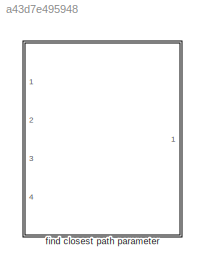
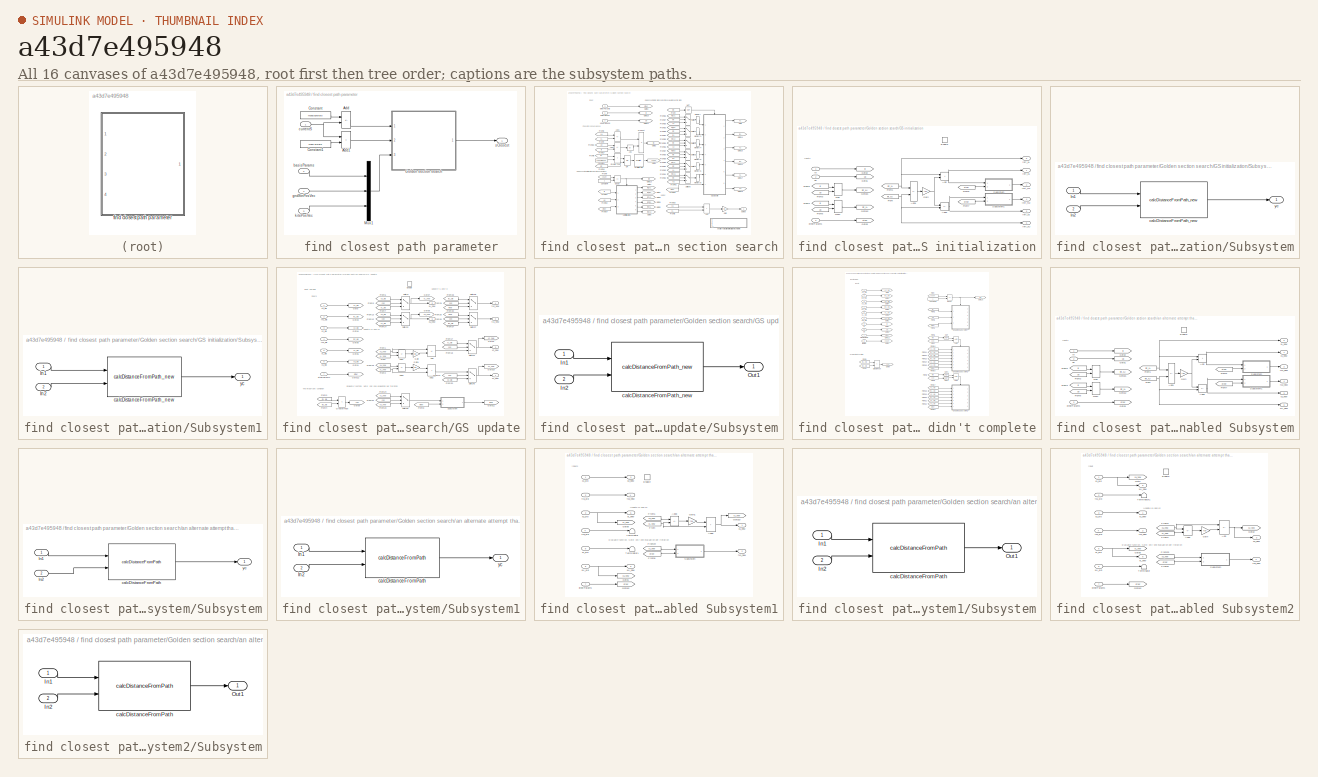
[diagram: thumbnail index - all 16 canvases of the model, root first then tree order]
MODEL slx_a43d7e495948
KIND library
CONFIG AbsTol = auto
CONFIG EnableMultiTasking = off
CONFIG FixedStep = auto
CONFIG MaxStep = auto
CONFIG MinStep = auto
CONFIG RelTol = 1e-3
CONFIG SampleTimeConstraint = Unconstrained
CONFIG SolverName = VariableStepAuto
CONFIG StartTime = 0.0
CONFIG StopTime = 10.0
BLOCK [SubSystem] find closest path parameter
  Ports = [4, 1]
  RequestExecContextInheritance = off
BLOCK [Sum] find closest path parameter/Add
  IconShape = rectangular
  Inputs = -+
  Ports = [2, 1]
BLOCK [Sum] find closest path parameter/Add1
  IconShape = rectangular
  Ports = [2, 1]
BLOCK [Constant] find closest path parameter/Constant
  Value = maxBackward
BLOCK [Constant] find closest path parameter/Constant1
  Value = maxForward
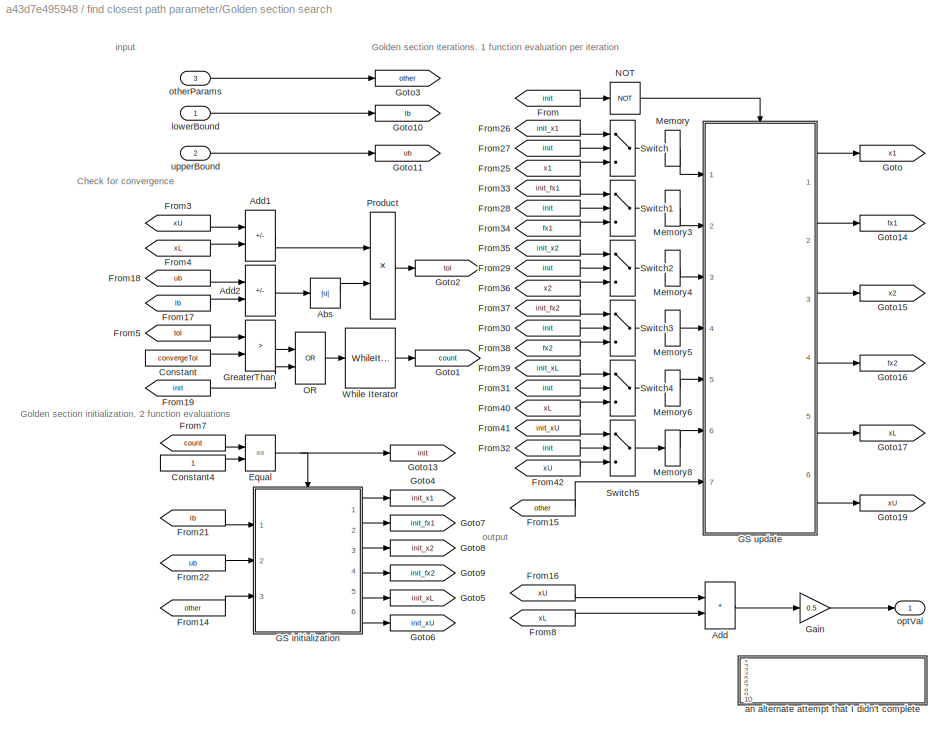
BLOCK [SubSystem] find closest path parameter/Golden section search
  Ports = [3, 1]
  RequestExecContextInheritance = off
  TreatAsAtomicUnit = on
BLOCK [Abs] find closest path parameter/Golden section search/Abs
  SaturateOnIntegerOverflow = off
BLOCK [Sum] find closest path parameter/Golden section search/Add
  IconShape = rectangular
  Ports = [2, 1]
BLOCK [Sum] find closest path parameter/Golden section search/Add1
  IconShape = rectangular
  Inputs = +-
  Ports = [2, 1]
BLOCK [Sum] find closest path parameter/Golden section search/Add2
  IconShape = rectangular
  Inputs = +-
  Ports = [2, 1]
BLOCK [Constant] find closest path parameter/Golden section search/Constant
  Value = convergeTol
BLOCK [Constant] find closest path parameter/Golden section search/Constant4
BLOCK [RelationalOperator] find closest path parameter/Golden section search/Equal
  InputSameDT = off
  Operator = ==
  OutDataTypeStr = boolean
  Ports = [2, 1]
  RndMeth = Simplest
BLOCK [From] find closest path parameter/Golden section search/From
  GotoTag = init
BLOCK [From] find closest path parameter/Golden section search/From14
  GotoTag = other
BLOCK [From] find closest path parameter/Golden section search/From15
  GotoTag = other
BLOCK [From] find closest path parameter/Golden section search/From16
  GotoTag = xU
BLOCK [From] find closest path parameter/Golden section search/From17
  GotoTag = lb
BLOCK [From] find closest path parameter/Golden section search/From18
  GotoTag = ub
BLOCK [From] find closest path parameter/Golden section search/From19
  GotoTag = init
BLOCK [From] find closest path parameter/Golden section search/From21
  GotoTag = lb
BLOCK [From] find closest path parameter/Golden section search/From22
  GotoTag = ub
BLOCK [From] find closest path parameter/Golden section search/From25
  GotoTag = x1
BLOCK [From] find closest path parameter/Golden section search/From26
  GotoTag = init_x1
BLOCK [From] find closest path parameter/Golden section search/From27
  GotoTag = init
BLOCK [From] find closest path parameter/Golden section search/From28
  GotoTag = init
BLOCK [From] find closest path parameter/Golden section search/From29
  GotoTag = init
BLOCK [From] find closest path parameter/Golden section search/From3
  GotoTag = xU
BLOCK [From] find closest path parameter/Golden section search/From30
  GotoTag = init
BLOCK [From] find closest path parameter/Golden section search/From31
  GotoTag = init
BLOCK [From] find closest path parameter/Golden section search/From32
  GotoTag = init
BLOCK [From] find closest path parameter/Golden section search/From33
  GotoTag = init_fx1
BLOCK [From] find closest path parameter/Golden section search/From34
  GotoTag = fx1
BLOCK [From] find closest path parameter/Golden section search/From35
  GotoTag = init_x2
BLOCK [From] find closest path parameter/Golden section search/From36
  GotoTag = x2
BLOCK [From] find closest path parameter/Golden section search/From37
  GotoTag = init_fx2
BLOCK [From] find closest path parameter/Golden section search/From38
  GotoTag = fx2
BLOCK [From] find closest path parameter/Golden section search/From39
  GotoTag = init_xL
BLOCK [From] find closest path parameter/Golden section search/From4
  GotoTag = xL
BLOCK [From] find closest path parameter/Golden section search/From40
  GotoTag = xL
BLOCK [From] find closest path parameter/Golden section search/From41
  GotoTag = init_xU
BLOCK [From] find closest path parameter/Golden section search/From42
  GotoTag = xU
BLOCK [From] find closest path parameter/Golden section search/From5
  GotoTag = tol
BLOCK [From] find closest path parameter/Golden section search/From7
  GotoTag = count
BLOCK [From] find closest path parameter/Golden section search/From8
  GotoTag = xL
BLOCK [SubSystem] find closest path parameter/Golden section search/GS initialization
  Ports = [3, 6, 1]
  RequestExecContextInheritance = off
  TreatAsAtomicUnit = on
BLOCK [Sum] find closest path parameter/Golden section search/GS initialization/Add
  IconShape = rectangular
  Ports = [2, 1]
BLOCK [Sum] find closest path parameter/Golden section search/GS initialization/Add1
  IconShape = rectangular
  Inputs = -+
  Ports = [2, 1]
BLOCK [Sum] find closest path parameter/Golden section search/GS initialization/Add2
  IconShape = rectangular
  Inputs = -+
  Ports = [2, 1]
BLOCK [EnablePort] find closest path parameter/Golden section search/GS initialization/Enable
  Ports = []
BLOCK [From] find closest path parameter/Golden section search/GS initialization/From
  GotoTag = init_xU
BLOCK [From] find closest path parameter/Golden section search/GS initialization/From1
  GotoTag = init_xL
BLOCK [From] find closest path parameter/Golden section search/GS initialization/From2
  GotoTag = lb
BLOCK [From] find closest path parameter/Golden section search/GS initialization/From3
  GotoTag = ub
BLOCK [From] find closest path parameter/Golden section search/GS initialization/From4
  GotoTag = lb
BLOCK [From] find closest path parameter/Golden section search/GS initialization/From5
  GotoTag = ub
BLOCK [From] find closest path parameter/Golden section search/GS initialization/From6
  GotoTag = other
BLOCK [From] find closest path parameter/Golden section search/GS initialization/From7
  GotoTag = other
BLOCK [Gain] find closest path parameter/Golden section search/GS initialization/Gain
  Gain = tau
BLOCK [Goto] find closest path parameter/Golden section search/GS initialization/Goto1
  GotoTag = ub
BLOCK [Goto] find closest path parameter/Golden section search/GS initialization/Goto12
  GotoTag = init_xL
BLOCK [Goto] find closest path parameter/Golden section search/GS initialization/Goto2
  GotoTag = lb
BLOCK [Goto] find closest path parameter/Golden section search/GS initialization/Goto21
  GotoTag = init_xU
BLOCK [Goto] find closest path parameter/Golden section search/GS initialization/Goto3
  GotoTag = other
BLOCK [MinMax] find closest path parameter/Golden section search/GS initialization/Max
  Function = max
  Inputs = 2
  Ports = [2, 1]
BLOCK [MinMax] find closest path parameter/Golden section search/GS initialization/Max1
  Inputs = 2
  Ports = [2, 1]
BLOCK [SubSystem] find closest path parameter/Golden section search/GS initialization/Subsystem
  Ports = [2, 1]
  RequestExecContextInheritance = off
BLOCK [Inport] find closest path parameter/Golden section search/GS initialization/Subsystem/In1
BLOCK [Inport] find closest path parameter/Golden section search/GS initialization/Subsystem/In2
  Port = 2
BLOCK [Reference] find closest path parameter/Golden section search/GS initialization/Subsystem/calcDistanceFromPath_new  REF=calcDistanceFromPath_new/calcDistanceFromPath_new
  Ports = [2, 1]
  SourceBlock = calcDistanceFromPath_new/calcDistanceFromPath_new
  SourceType = SubSystem
BLOCK [Outport] find closest path parameter/Golden section search/GS initialization/Subsystem/yc
BLOCK [SubSystem] find closest path parameter/Golden section search/GS initialization/Subsystem1
  Ports = [2, 1]
  RequestExecContextInheritance = off
BLOCK [Inport] find closest path parameter/Golden section search/GS initialization/Subsystem1/In1
BLOCK [Inport] find closest path parameter/Golden section search/GS initialization/Subsystem1/In2
  Port = 2
BLOCK [Reference] find closest path parameter/Golden section search/GS initialization/Subsystem1/calcDistanceFromPath_new  REF=calcDistanceFromPath_new/calcDistanceFromPath_new
  Ports = [2, 1]
  SourceBlock = calcDistanceFromPath_new/calcDistanceFromPath_new
  SourceType = SubSystem
BLOCK [Outport] find closest path parameter/Golden section search/GS initialization/Subsystem1/yc
BLOCK [Outport] find closest path parameter/Golden section search/GS initialization/init_fx1
  Port = 2
BLOCK [Outport] find closest path parameter/Golden section search/GS initialization/init_fx2
  Port = 4
BLOCK [Outport] find closest path parameter/Golden section search/GS initialization/init_x1
BLOCK [Outport] find closest path parameter/Golden section search/GS initialization/init_x2
  Port = 3
BLOCK [Outport] find closest path parameter/Golden section search/GS initialization/init_xL
  Port = 5
BLOCK [Outport] find closest path parameter/Golden section search/GS initialization/init_xU
  Port = 6
BLOCK [Inport] find closest path parameter/Golden section search/GS initialization/lb
BLOCK [Inport] find closest path parameter/Golden section search/GS initialization/otherParams
  Port = 3
BLOCK [Inport] find closest path parameter/Golden section search/GS initialization/ub
  Port = 2
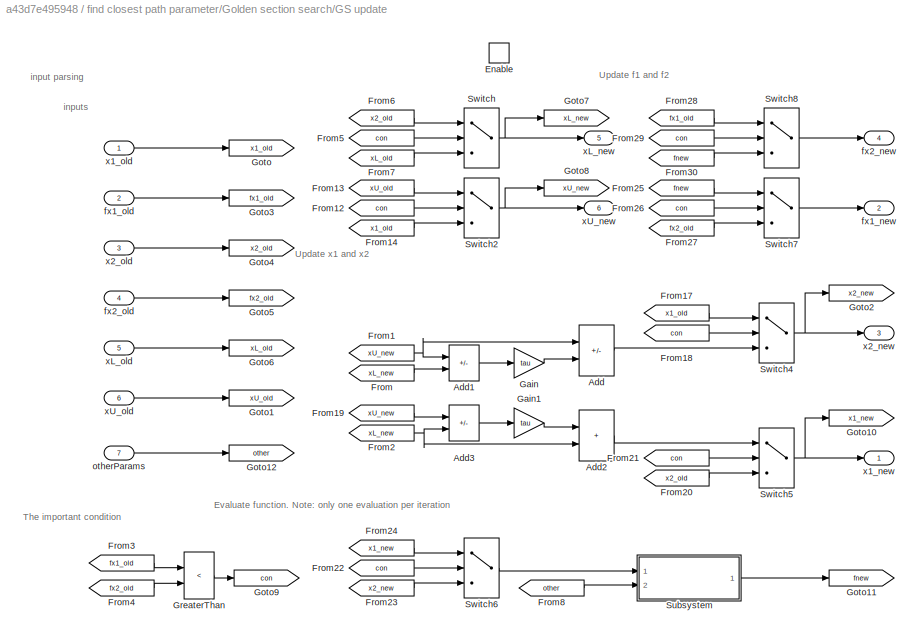
BLOCK [SubSystem] find closest path parameter/Golden section search/GS update
  Ports = [7, 6, 1]
  RequestExecContextInheritance = off
  TreatAsAtomicUnit = on
BLOCK [Sum] find closest path parameter/Golden section search/GS update/Add
  IconShape = rectangular
  Inputs = +-
  Ports = [2, 1]
BLOCK [Sum] find closest path parameter/Golden section search/GS update/Add1
  IconShape = rectangular
  Inputs = +-
  Ports = [2, 1]
BLOCK [Sum] find closest path parameter/Golden section search/GS update/Add2
  IconShape = rectangular
  Ports = [2, 1]
BLOCK [Sum] find closest path parameter/Golden section search/GS update/Add3
  IconShape = rectangular
  Inputs = +-
  Ports = [2, 1]
BLOCK [EnablePort] find closest path parameter/Golden section search/GS update/Enable
  Ports = []
BLOCK [From] find closest path parameter/Golden section search/GS update/From
  GotoTag = xL_new
BLOCK [From] find closest path parameter/Golden section search/GS update/From1
  GotoTag = xU_new
BLOCK [From] find closest path parameter/Golden section search/GS update/From12
  GotoTag = con
BLOCK [From] find closest path parameter/Golden section search/GS update/From13
  GotoTag = xU_old
BLOCK [From] find closest path parameter/Golden section search/GS update/From14
  GotoTag = x1_old
BLOCK [From] find closest path parameter/Golden section search/GS update/From17
  GotoTag = x1_old
BLOCK [From] find closest path parameter/Golden section search/GS update/From18
  GotoTag = con
BLOCK [From] find closest path parameter/Golden section search/GS update/From19
  GotoTag = xU_new
BLOCK [From] find closest path parameter/Golden section search/GS update/From2
  GotoTag = xL_new
BLOCK [From] find closest path parameter/Golden section search/GS update/From20
  GotoTag = x2_old
BLOCK [From] find closest path parameter/Golden section search/GS update/From21
  GotoTag = con
BLOCK [From] find closest path parameter/Golden section search/GS update/From22
  GotoTag = con
BLOCK [From] find closest path parameter/Golden section search/GS update/From23
  GotoTag = x2_new
BLOCK [From] find closest path parameter/Golden section search/GS update/From24
  GotoTag = x1_new
BLOCK [From] find closest path parameter/Golden section search/GS update/From25
  GotoTag = fnew
BLOCK [From] find closest path parameter/Golden section search/GS update/From26
  GotoTag = con
BLOCK [From] find closest path parameter/Golden section search/GS update/From27
  GotoTag = fx2_old
BLOCK [From] find closest path parameter/Golden section search/GS update/From28
  GotoTag = fx1_old
BLOCK [From] find closest path parameter/Golden section search/GS update/From29
  GotoTag = con
BLOCK [From] find closest path parameter/Golden section search/GS update/From3
  GotoTag = fx1_old
BLOCK [From] find closest path parameter/Golden section search/GS update/From30
  GotoTag = fnew
BLOCK [From] find closest path parameter/Golden section search/GS update/From4
  GotoTag = fx2_old
BLOCK [From] find closest path parameter/Golden section search/GS update/From5
  GotoTag = con
BLOCK [From] find closest path parameter/Golden section search/GS update/From6
  GotoTag = x2_old
BLOCK [From] find closest path parameter/Golden section search/GS update/From7
  GotoTag = xL_old
BLOCK [From] find closest path parameter/Golden section search/GS update/From8
  GotoTag = other
BLOCK [Gain] find closest path parameter/Golden section search/GS update/Gain
  Gain = tau
BLOCK [Gain] find closest path parameter/Golden section search/GS update/Gain1
  Gain = tau
BLOCK [Goto] find closest path parameter/Golden section search/GS update/Goto
  GotoTag = x1_old
BLOCK [Goto] find closest path parameter/Golden section search/GS update/Goto1
  GotoTag = xU_old
BLOCK [Goto] find closest path parameter/Golden section search/GS update/Goto10
  GotoTag = x1_new
BLOCK [Goto] find closest path parameter/Golden section search/GS update/Goto11
  GotoTag = fnew
BLOCK [Goto] find closest path parameter/Golden section search/GS update/Goto12
  GotoTag = other
BLOCK [Goto] find closest path parameter/Golden section search/GS update/Goto2
  GotoTag = x2_new
BLOCK [Goto] find closest path parameter/Golden section search/GS update/Goto3
  GotoTag = fx1_old
BLOCK [Goto] find closest path parameter/Golden section search/GS update/Goto4
  GotoTag = x2_old
BLOCK [Goto] find closest path parameter/Golden section search/GS update/Goto5
  GotoTag = fx2_old
BLOCK [Goto] find closest path parameter/Golden section search/GS update/Goto6
  GotoTag = xL_old
BLOCK [Goto] find closest path parameter/Golden section search/GS update/Goto7
  GotoTag = xL_new
BLOCK [Goto] find closest path parameter/Golden section search/GS update/Goto8
  GotoTag = xU_new
BLOCK [Goto] find closest path parameter/Golden section search/GS update/Goto9
  GotoTag = con
BLOCK [RelationalOperator] find closest path parameter/Golden section search/GS update/GreaterThan
  InputSameDT = off
  Operator = <
  OutDataTypeStr = boolean
  Ports = [2, 1]
  RndMeth = Simplest
BLOCK [SubSystem] find closest path parameter/Golden section search/GS update/Subsystem
  Ports = [2, 1]
  RequestExecContextInheritance = off
BLOCK [Inport] find closest path parameter/Golden section search/GS update/Subsystem/In1
BLOCK [Inport] find closest path parameter/Golden section search/GS update/Subsystem/In2
  Port = 2
BLOCK [Outport] find closest path parameter/Golden section search/GS update/Subsystem/Out1
BLOCK [Reference] find closest path parameter/Golden section search/GS update/Subsystem/calcDistanceFromPath_new  REF=calcDistanceFromPath_new/calcDistanceFromPath_new
  Ports = [2, 1]
  SourceBlock = calcDistanceFromPath_new/calcDistanceFromPath_new
  SourceType = SubSystem
BLOCK [Switch] find closest path parameter/Golden section search/GS update/Switch
  Criteria = u2 > Threshold
  InputSameDT = off
  SaturateOnIntegerOverflow = off
BLOCK [Switch] find closest path parameter/Golden section search/GS update/Switch2
  Criteria = u2 > Threshold
  InputSameDT = off
  SaturateOnIntegerOverflow = off
BLOCK [Switch] find closest path parameter/Golden section search/GS update/Switch4
  Criteria = u2 > Threshold
  InputSameDT = off
  SaturateOnIntegerOverflow = off
BLOCK [Switch] find closest path parameter/Golden section search/GS update/Switch5
  Criteria = u2 > Threshold
  InputSameDT = off
  SaturateOnIntegerOverflow = off
BLOCK [Switch] find closest path parameter/Golden section search/GS update/Switch6
  Criteria = u2 > Threshold
  InputSameDT = off
  SaturateOnIntegerOverflow = off
BLOCK [Switch] find closest path parameter/Golden section search/GS update/Switch7
  Criteria = u2 > Threshold
  InputSameDT = off
  SaturateOnIntegerOverflow = off
BLOCK [Switch] find closest path parameter/Golden section search/GS update/Switch8
  Criteria = u2 > Threshold
  InputSameDT = off
  SaturateOnIntegerOverflow = off
BLOCK [Outport] find closest path parameter/Golden section search/GS update/fx1_new
  Port = 2
BLOCK [Inport] find closest path parameter/Golden section search/GS update/fx1_old
  Port = 2
BLOCK [Outport] find closest path parameter/Golden section search/GS update/fx2_new
  Port = 4
BLOCK [Inport] find closest path parameter/Golden section search/GS update/fx2_old
  Port = 4
BLOCK [Inport] find closest path parameter/Golden section search/GS update/otherParams
  Port = 7
BLOCK [Outport] find closest path parameter/Golden section search/GS update/x1_new
BLOCK [Inport] find closest path parameter/Golden section search/GS update/x1_old
BLOCK [Outport] find closest path parameter/Golden section search/GS update/x2_new
  Port = 3
BLOCK [Inport] find closest path parameter/Golden section search/GS update/x2_old
  Port = 3
BLOCK [Outport] find closest path parameter/Golden section search/GS update/xL_new
  Port = 5
BLOCK [Inport] find closest path parameter/Golden section search/GS update/xL_old
  Port = 5
BLOCK [Outport] find closest path parameter/Golden section search/GS update/xU_new
  Port = 6
BLOCK [Inport] find closest path parameter/Golden section search/GS update/xU_old
  Port = 6
BLOCK [Gain] find closest path parameter/Golden section search/Gain
  Gain = 0.5
BLOCK [Goto] find closest path parameter/Golden section search/Goto
  GotoTag = x1
BLOCK [Goto] find closest path parameter/Golden section search/Goto1
  GotoTag = count
BLOCK [Goto] find closest path parameter/Golden section search/Goto10
  GotoTag = lb
BLOCK [Goto] find closest path parameter/Golden section search/Goto11
  GotoTag = ub
BLOCK [Goto] find closest path parameter/Golden section search/Goto13
  GotoTag = init
BLOCK [Goto] find closest path parameter/Golden section search/Goto14
  GotoTag = fx1
BLOCK [Goto] find closest path parameter/Golden section search/Goto15
  GotoTag = x2
BLOCK [Goto] find closest path parameter/Golden section search/Goto16
  GotoTag = fx2
BLOCK [Goto] find closest path parameter/Golden section search/Goto17
  GotoTag = xL
BLOCK [Goto] find closest path parameter/Golden section search/Goto19
  GotoTag = xU
BLOCK [Goto] find closest path parameter/Golden section search/Goto2
  GotoTag = tol
BLOCK [Goto] find closest path parameter/Golden section search/Goto3
  GotoTag = other
BLOCK [Goto] find closest path parameter/Golden section search/Goto4
  GotoTag = init_x1
BLOCK [Goto] find closest path parameter/Golden section search/Goto5
  GotoTag = init_xL
BLOCK [Goto] find closest path parameter/Golden section search/Goto6
  GotoTag = init_xU
BLOCK [Goto] find closest path parameter/Golden section search/Goto7
  GotoTag = init_fx1
BLOCK [Goto] find closest path parameter/Golden section search/Goto8
  GotoTag = init_x2
BLOCK [Goto] find closest path parameter/Golden section search/Goto9
  GotoTag = init_fx2
BLOCK [RelationalOperator] find closest path parameter/Golden section search/GreaterThan
  InputSameDT = off
  Operator = >
  OutDataTypeStr = boolean
  Ports = [2, 1]
  RndMeth = Simplest
BLOCK [Memory] find closest path parameter/Golden section search/Memory
  InheritSampleTime = on
BLOCK [Memory] find closest path parameter/Golden section search/Memory3
  InheritSampleTime = on
BLOCK [Memory] find closest path parameter/Golden section search/Memory4
  InheritSampleTime = on
BLOCK [Memory] find closest path parameter/Golden section search/Memory5
  InheritSampleTime = on
BLOCK [Memory] find closest path parameter/Golden section search/Memory6
  InheritSampleTime = on
BLOCK [Memory] find closest path parameter/Golden section search/Memory8
  InheritSampleTime = on
BLOCK [Logic] find closest path parameter/Golden section search/NOT
  AllPortsSameDT = off
  IconShape = distinctive
  Operator = NOT
  OutDataTypeStr = boolean
  Ports = [1, 1]
BLOCK [Logic] find closest path parameter/Golden section search/OR
  AllPortsSameDT = off
  IconShape = distinctive
  Operator = OR
  OutDataTypeStr = boolean
  Ports = [2, 1]
BLOCK [Product] find closest path parameter/Golden section search/Product
  Inputs = */
  Ports = [2, 1]
BLOCK [Switch] find closest path parameter/Golden section search/Switch
  Criteria = u2 > Threshold
  InputSameDT = off
  SaturateOnIntegerOverflow = off
BLOCK [Switch] find closest path parameter/Golden section search/Switch1
  Criteria = u2 > Threshold
  InputSameDT = off
  SaturateOnIntegerOverflow = off
BLOCK [Switch] find closest path parameter/Golden section search/Switch2
  Criteria = u2 > Threshold
  InputSameDT = off
  SaturateOnIntegerOverflow = off
BLOCK [Switch] find closest path parameter/Golden section search/Switch3
  Criteria = u2 > Threshold
  InputSameDT = off
  SaturateOnIntegerOverflow = off
BLOCK [Switch] find closest path parameter/Golden section search/Switch4
  Criteria = u2 > Threshold
  InputSameDT = off
  SaturateOnIntegerOverflow = off
BLOCK [Switch] find closest path parameter/Golden section search/Switch5
  Criteria = u2 > Threshold
  InputSameDT = off
  SaturateOnIntegerOverflow = off
BLOCK [WhileIterator] find closest path parameter/Golden section search/While Iterator
  MaxIters = MaxIters
  Ports = [1, 1]
  ResetStates = reset
  ShowIterationPort = on
  WhileBlockType = do-while
BLOCK [SubSystem] find closest path parameter/Golden section search/an alternate attempt that I didn't complete
  Commented = on
  Ports = [10]
  RequestExecContextInheritance = off
BLOCK [Logic] find closest path parameter/Golden section search/an alternate attempt that I didn't complete/AND
  AllPortsSameDT = off
  IconShape = distinctive
  OutDataTypeStr = boolean
  Ports = [2, 1]
BLOCK [Logic] find closest path parameter/Golden section search/an alternate attempt that I didn't complete/AND1
  AllPortsSameDT = off
  IconShape = distinctive
  OutDataTypeStr = boolean
  Ports = [2, 1]
BLOCK [Constant] find closest path parameter/Golden section search/an alternate attempt that I didn't complete/Constant4
BLOCK [SubSystem] find closest path parameter/Golden section search/an alternate attempt that I didn't complete/Enabled Subsystem
  Ports = [3, 6, 1]
  RequestExecContextInheritance = off
  TreatAsAtomicUnit = on
BLOCK [Sum] find closest path parameter/Golden section search/an alternate attempt that I didn't complete/Enabled Subsystem/Add
  IconShape = rectangular
  Ports = [2, 1]
BLOCK [Sum] find closest path parameter/Golden section search/an alternate attempt that I didn't complete/Enabled Subsystem/Add1
  IconShape = rectangular
  Inputs = -+
  Ports = [2, 1]
BLOCK [Sum] find closest path parameter/Golden section search/an alternate attempt that I didn't complete/Enabled Subsystem/Add2
  IconShape = rectangular
  Inputs = -+
  Ports = [2, 1]
BLOCK [EnablePort] find closest path parameter/Golden section search/an alternate attempt that I didn't complete/Enabled Subsystem/Enable
  Ports = []
BLOCK [From] find closest path parameter/Golden section search/an alternate attempt that I didn't complete/Enabled Subsystem/From
  GotoTag = init_xU
BLOCK [From] find closest path parameter/Golden section search/an alternate attempt that I didn't complete/Enabled Subsystem/From1
  GotoTag = init_xL
BLOCK [From] find closest path parameter/Golden section search/an alternate attempt that I didn't complete/Enabled Subsystem/From2
  GotoTag = lb
BLOCK [From] find closest path parameter/Golden section search/an alternate attempt that I didn't complete/Enabled Subsystem/From3
  GotoTag = ub
BLOCK [From] find closest path parameter/Golden section search/an alternate attempt that I didn't complete/Enabled Subsystem/From4
  GotoTag = lb
BLOCK [From] find closest path parameter/Golden section search/an alternate attempt that I didn't complete/Enabled Subsystem/From5
  GotoTag = ub
BLOCK [From] find closest path parameter/Golden section search/an alternate attempt that I didn't complete/Enabled Subsystem/From6
  GotoTag = other
BLOCK [From] find closest path parameter/Golden section search/an alternate attempt that I didn't complete/Enabled Subsystem/From7
  GotoTag = other
BLOCK [Gain] find closest path parameter/Golden section search/an alternate attempt that I didn't complete/Enabled Subsystem/Gain
  Gain = tau
BLOCK [Goto] find closest path parameter/Golden section search/an alternate attempt that I didn't complete/Enabled Subsystem/Goto1
  GotoTag = ub
BLOCK [Goto] find closest path parameter/Golden section search/an alternate attempt that I didn't complete/Enabled Subsystem/Goto12
  GotoTag = init_xL
BLOCK [Goto] find closest path parameter/Golden section search/an alternate attempt that I didn't complete/Enabled Subsystem/Goto2
  GotoTag = lb
BLOCK [Goto] find closest path parameter/Golden section search/an alternate attempt that I didn't complete/Enabled Subsystem/Goto21
  GotoTag = init_xU
BLOCK [Goto] find closest path parameter/Golden section search/an alternate attempt that I didn't complete/Enabled Subsystem/Goto3
  GotoTag = other
BLOCK [MinMax] find closest path parameter/Golden section search/an alternate attempt that I didn't complete/Enabled Subsystem/Max
  Function = max
  Inputs = 2
  Ports = [2, 1]
BLOCK [MinMax] find closest path parameter/Golden section search/an alternate attempt that I didn't complete/Enabled Subsystem/Max1
  Inputs = 2
  Ports = [2, 1]
BLOCK [SubSystem] find closest path parameter/Golden section search/an alternate attempt that I didn't complete/Enabled Subsystem/Subsystem
  Ports = [2, 1]
  RequestExecContextInheritance = off
BLOCK [Inport] find closest path parameter/Golden section search/an alternate attempt that I didn't complete/Enabled Subsystem/Subsystem/In1
BLOCK [Inport] find closest path parameter/Golden section search/an alternate attempt that I didn't complete/Enabled Subsystem/Subsystem/In2
  Port = 2
BLOCK [Reference] find closest path parameter/Golden section search/an alternate attempt that I didn't complete/Enabled Subsystem/Subsystem/calcDistanceFromPath  REF=calcDistanceFromPath/calcDistanceFromPath
  Ports = [2, 1]
  SourceBlock = calcDistanceFromPath/calcDistanceFromPath
  SourceType = SubSystem
BLOCK [Outport] find closest path parameter/Golden section search/an alternate attempt that I didn't complete/Enabled Subsystem/Subsystem/yc
BLOCK [SubSystem] find closest path parameter/Golden section search/an alternate attempt that I didn't complete/Enabled Subsystem/Subsystem1
  Ports = [2, 1]
  RequestExecContextInheritance = off
BLOCK [Inport] find closest path parameter/Golden section search/an alternate attempt that I didn't complete/Enabled Subsystem/Subsystem1/In1
BLOCK [Inport] find closest path parameter/Golden section search/an alternate attempt that I didn't complete/Enabled Subsystem/Subsystem1/In2
  Port = 2
BLOCK [Reference] find closest path parameter/Golden section search/an alternate attempt that I didn't complete/Enabled Subsystem/Subsystem1/calcDistanceFromPath  REF=calcDistanceFromPath/calcDistanceFromPath
  Ports = [2, 1]
  SourceBlock = calcDistanceFromPath/calcDistanceFromPath
  SourceType = SubSystem
BLOCK [Outport] find closest path parameter/Golden section search/an alternate attempt that I didn't complete/Enabled Subsystem/Subsystem1/yc
BLOCK [Outport] find closest path parameter/Golden section search/an alternate attempt that I didn't complete/Enabled Subsystem/fx1_new
  Port = 2
BLOCK [Outport] find closest path parameter/Golden section search/an alternate attempt that I didn't complete/Enabled Subsystem/fx2_new
  Port = 4
BLOCK [Inport] find closest path parameter/Golden section search/an alternate attempt that I didn't complete/Enabled Subsystem/lb
BLOCK [Inport] find closest path parameter/Golden section search/an alternate attempt that I didn't complete/Enabled Subsystem/otherParams
  Port = 3
BLOCK [Inport] find closest path parameter/Golden section search/an alternate attempt that I didn't complete/Enabled Subsystem/ub
  Port = 2
BLOCK [Outport] find closest path parameter/Golden section search/an alternate attempt that I didn't complete/Enabled Subsystem/x1_new
BLOCK [Outport] find closest path parameter/Golden section search/an alternate attempt that I didn't complete/Enabled Subsystem/x2_new
  Port = 3
BLOCK [Outport] find closest path parameter/Golden section search/an alternate attempt that I didn't complete/Enabled Subsystem/xL_new
  Port = 5
BLOCK [Outport] find closest path parameter/Golden section search/an alternate attempt that I didn't complete/Enabled Subsystem/xU_new
  Port = 6
BLOCK [SubSystem] find closest path parameter/Golden section search/an alternate attempt that I didn't complete/Enabled Subsystem1
  Ports = [7, 6, 1]
  RequestExecContextInheritance = off
  TreatAsAtomicUnit = on
BLOCK [Sum] find closest path parameter/Golden section search/an alternate attempt that I didn't complete/Enabled Subsystem1/Add2
  IconShape = rectangular
  Ports = [2, 1]
BLOCK [Sum] find closest path parameter/Golden section search/an alternate attempt that I didn't complete/Enabled Subsystem1/Add3
  IconShape = rectangular
  Inputs = +-
  Ports = [2, 1]
BLOCK [EnablePort] find closest path parameter/Golden section search/an alternate attempt that I didn't complete/Enabled Subsystem1/Enable
  Ports = []
BLOCK [From] find closest path parameter/Golden section search/an alternate attempt that I didn't complete/Enabled Subsystem1/From
  GotoTag = xL_new
BLOCK [From] find closest path parameter/Golden section search/an alternate attempt that I didn't complete/Enabled Subsystem1/From1
  GotoTag = xU_new
BLOCK [From] find closest path parameter/Golden section search/an alternate attempt that I didn't complete/Enabled Subsystem1/From24
  GotoTag = x1_new
BLOCK [From] find closest path parameter/Golden section search/an alternate attempt that I didn't complete/Enabled Subsystem1/From8
  GotoTag = other
BLOCK [Gain] find closest path parameter/Golden section search/an alternate attempt that I didn't complete/Enabled Subsystem1/Gain1
  Gain = tau
BLOCK [Goto] find closest path parameter/Golden section search/an alternate attempt that I didn't complete/Enabled Subsystem1/Goto1
  GotoTag = xU_new
BLOCK [Goto] find closest path parameter/Golden section search/an alternate attempt that I didn't complete/Enabled Subsystem1/Goto10
  GotoTag = x1_new
BLOCK [Goto] find closest path parameter/Golden section search/an alternate attempt that I didn't complete/Enabled Subsystem1/Goto12
  GotoTag = other
BLOCK [Goto] find closest path parameter/Golden section search/an alternate attempt that I didn't complete/Enabled Subsystem1/Goto6
  GotoTag = xL_new
BLOCK [SubSystem] find closest path parameter/Golden section search/an alternate attempt that I didn't complete/Enabled Subsystem1/Subsystem
  Ports = [2, 1]
  RequestExecContextInheritance = off
BLOCK [Inport] find closest path parameter/Golden section search/an alternate attempt that I didn't complete/Enabled Subsystem1/Subsystem/In1
BLOCK [Inport] find closest path parameter/Golden section search/an alternate attempt that I didn't complete/Enabled Subsystem1/Subsystem/In2
  Port = 2
BLOCK [Outport] find closest path parameter/Golden section search/an alternate attempt that I didn't complete/Enabled Subsystem1/Subsystem/Out1
BLOCK [Reference] find closest path parameter/Golden section search/an alternate attempt that I didn't complete/Enabled Subsystem1/Subsystem/calcDistanceFromPath  REF=calcDistanceFromPath/calcDistanceFromPath
  Ports = [2, 1]
  SourceBlock = calcDistanceFromPath/calcDistanceFromPath
  SourceType = SubSystem
BLOCK [Terminator] find closest path parameter/Golden section search/an alternate attempt that I didn't complete/Enabled Subsystem1/Terminator
BLOCK [Terminator] find closest path parameter/Golden section search/an alternate attempt that I didn't complete/Enabled Subsystem1/Terminator1
BLOCK [Outport] find closest path parameter/Golden section search/an alternate attempt that I didn't complete/Enabled Subsystem1/fx1_new
  Port = 2
BLOCK [Inport] find closest path parameter/Golden section search/an alternate attempt that I didn't complete/Enabled Subsystem1/fx1_old
  Port = 2
BLOCK [Outport] find closest path parameter/Golden section search/an alternate attempt that I didn't complete/Enabled Subsystem1/fx2_new
  Port = 4
BLOCK [Inport] find closest path parameter/Golden section search/an alternate attempt that I didn't complete/Enabled Subsystem1/fx2_old
  Port = 4
BLOCK [Inport] find closest path parameter/Golden section search/an alternate attempt that I didn't complete/Enabled Subsystem1/otherParams
  Port = 7
BLOCK [Outport] find closest path parameter/Golden section search/an alternate attempt that I didn't complete/Enabled Subsystem1/x1_new
BLOCK [Inport] find closest path parameter/Golden section search/an alternate attempt that I didn't complete/Enabled Subsystem1/x1_old
BLOCK [Outport] find closest path parameter/Golden section search/an alternate attempt that I didn't complete/Enabled Subsystem1/x2_new
  Port = 3
BLOCK [Inport] find closest path parameter/Golden section search/an alternate attempt that I didn't complete/Enabled Subsystem1/x2_old
  Port = 3
BLOCK [Outport] find closest path parameter/Golden section search/an alternate attempt that I didn't complete/Enabled Subsystem1/xL_new
  Port = 5
BLOCK [Inport] find closest path parameter/Golden section search/an alternate attempt that I didn't complete/Enabled Subsystem1/xL_old
  Port = 5
BLOCK [Outport] find closest path parameter/Golden section search/an alternate attempt that I didn't complete/Enabled Subsystem1/xU_new
  Port = 6
BLOCK [Inport] find closest path parameter/Golden section search/an alternate attempt that I didn't complete/Enabled Subsystem1/xU_old
  Port = 6
BLOCK [SubSystem] find closest path parameter/Golden section search/an alternate attempt that I didn't complete/Enabled Subsystem2
  Ports = [7, 6, 1]
  RequestExecContextInheritance = off
  TreatAsAtomicUnit = on
BLOCK [Sum] find closest path parameter/Golden section search/an alternate attempt that I didn't complete/Enabled Subsystem2/Add
  IconShape = rectangular
  Inputs = +-
  Ports = [2, 1]
BLOCK [Sum] find closest path parameter/Golden section search/an alternate attempt that I didn't complete/Enabled Subsystem2/Add1
  IconShape = rectangular
  Inputs = +-
  Ports = [2, 1]
BLOCK [EnablePort] find closest path parameter/Golden section search/an alternate attempt that I didn't complete/Enabled Subsystem2/Enable
  Ports = []
BLOCK [From] find closest path parameter/Golden section search/an alternate attempt that I didn't complete/Enabled Subsystem2/From1
  GotoTag = xL_new
BLOCK [From] find closest path parameter/Golden section search/an alternate attempt that I didn't complete/Enabled Subsystem2/From2
  GotoTag = xU_new
BLOCK [From] find closest path parameter/Golden section search/an alternate attempt that I didn't complete/Enabled Subsystem2/From23
  GotoTag = x2_new
BLOCK [From] find closest path parameter/Golden section search/an alternate attempt that I didn't complete/Enabled Subsystem2/From8
  GotoTag = other
BLOCK [Gain] find closest path parameter/Golden section search/an alternate attempt that I didn't complete/Enabled Subsystem2/Gain
  Gain = tau
BLOCK [Goto] find closest path parameter/Golden section search/an alternate attempt that I didn't complete/Enabled Subsystem2/Goto
  GotoTag = xU_new
BLOCK [Goto] find closest path parameter/Golden section search/an alternate attempt that I didn't complete/Enabled Subsystem2/Goto12
  GotoTag = other
BLOCK [Goto] find closest path parameter/Golden section search/an alternate attempt that I didn't complete/Enabled Subsystem2/Goto2
  GotoTag = x2_new
BLOCK [Goto] find closest path parameter/Golden section search/an alternate attempt that I didn't complete/Enabled Subsystem2/Goto6
  GotoTag = xL_new
BLOCK [SubSystem] find closest path parameter/Golden section search/an alternate attempt that I didn't complete/Enabled Subsystem2/Subsystem
  Ports = [2, 1]
  RequestExecContextInheritance = off
BLOCK [Inport] find closest path parameter/Golden section search/an alternate attempt that I didn't complete/Enabled Subsystem2/Subsystem/In1
BLOCK [Inport] find closest path parameter/Golden section search/an alternate attempt that I didn't complete/Enabled Subsystem2/Subsystem/In2
  Port = 2
BLOCK [Outport] find closest path parameter/Golden section search/an alternate attempt that I didn't complete/Enabled Subsystem2/Subsystem/Out1
BLOCK [Reference] find closest path parameter/Golden section search/an alternate attempt that I didn't complete/Enabled Subsystem2/Subsystem/calcDistanceFromPath  REF=calcDistanceFromPath/calcDistanceFromPath
  Ports = [2, 1]
  SourceBlock = calcDistanceFromPath/calcDistanceFromPath
  SourceType = SubSystem
BLOCK [Terminator] find closest path parameter/Golden section search/an alternate attempt that I didn't complete/Enabled Subsystem2/Terminator
BLOCK [Terminator] find closest path parameter/Golden section search/an alternate attempt that I didn't complete/Enabled Subsystem2/Terminator1
BLOCK [Outport] find closest path parameter/Golden section search/an alternate attempt that I didn't complete/Enabled Subsystem2/fx1_new
  Port = 2
BLOCK [Inport] find closest path parameter/Golden section search/an alternate attempt that I didn't complete/Enabled Subsystem2/fx1_old
  Port = 2
BLOCK [Outport] find closest path parameter/Golden section search/an alternate attempt that I didn't complete/Enabled Subsystem2/fx2_new
  Port = 4
BLOCK [Inport] find closest path parameter/Golden section search/an alternate attempt that I didn't complete/Enabled Subsystem2/fx2_old
  Port = 4
BLOCK [Inport] find closest path parameter/Golden section search/an alternate attempt that I didn't complete/Enabled Subsystem2/otherParams
  Port = 7
BLOCK [Outport] find closest path parameter/Golden section search/an alternate attempt that I didn't complete/Enabled Subsystem2/x1_new
BLOCK [Inport] find closest path parameter/Golden section search/an alternate attempt that I didn't complete/Enabled Subsystem2/x1_old
BLOCK [Outport] find closest path parameter/Golden section search/an alternate attempt that I didn't complete/Enabled Subsystem2/x2_new
  Port = 3
BLOCK [Inport] find closest path parameter/Golden section search/an alternate attempt that I didn't complete/Enabled Subsystem2/x2_old
  Port = 3
BLOCK [Outport] find closest path parameter/Golden section search/an alternate attempt that I didn't complete/Enabled Subsystem2/xL_new
  Port = 5
BLOCK [Inport] find closest path parameter/Golden section search/an alternate attempt that I didn't complete/Enabled Subsystem2/xL_old
  Port = 5
BLOCK [Outport] find closest path parameter/Golden section search/an alternate attempt that I didn't complete/Enabled Subsystem2/xU_new
  Port = 6
BLOCK [Inport] find closest path parameter/Golden section search/an alternate attempt that I didn't complete/Enabled Subsystem2/xU_old
  Port = 6
BLOCK [RelationalOperator] find closest path parameter/Golden section search/an alternate attempt that I didn't complete/Equal
  InputSameDT = off
  Operator = ==
  OutDataTypeStr = boolean
  Ports = [2, 1]
  RndMeth = Simplest
BLOCK [From] find closest path parameter/Golden section search/an alternate attempt that I didn't complete/From
  GotoTag = count
BLOCK [From] find closest path parameter/Golden section search/an alternate attempt that I didn't complete/From1
  GotoTag = other
BLOCK [From] find closest path parameter/Golden section search/an alternate attempt that I didn't complete/From10
  GotoTag = x1_old
BLOCK [From] find closest path parameter/Golden section search/an alternate attempt that I didn't complete/From11
  GotoTag = fx1_old
BLOCK [From] find closest path parameter/Golden section search/an alternate attempt that I didn't complete/From12
  GotoTag = x2_old
BLOCK [From] find closest path parameter/Golden section search/an alternate attempt that I didn't complete/From13
  GotoTag = fx2_old
BLOCK [From] find closest path parameter/Golden section search/an alternate attempt that I didn't complete/From14
  GotoTag = xL_old
BLOCK [From] find closest path parameter/Golden section search/an alternate attempt that I didn't complete/From15
  GotoTag = xU_old
BLOCK [From] find closest path parameter/Golden section search/an alternate attempt that I didn't complete/From16
  GotoTag = other
BLOCK [From] find closest path parameter/Golden section search/an alternate attempt that I didn't complete/From17
  GotoTag = x1_old
BLOCK [From] find closest path parameter/Golden section search/an alternate attempt that I didn't complete/From18
  GotoTag = fx1_old
BLOCK [From] find closest path parameter/Golden section search/an alternate attempt that I didn't complete/From19
  GotoTag = x2_old
BLOCK [From] find closest path parameter/Golden section search/an alternate attempt that I didn't complete/From2
  GotoTag = lb
BLOCK [From] find closest path parameter/Golden section search/an alternate attempt that I didn't complete/From20
  GotoTag = fx2_old
BLOCK [From] find closest path parameter/Golden section search/an alternate attempt that I didn't complete/From21
  GotoTag = xL_old
BLOCK [From] find closest path parameter/Golden section search/an alternate attempt that I didn't complete/From22
  GotoTag = xU_old
BLOCK [From] find closest path parameter/Golden section search/an alternate attempt that I didn't complete/From23
  GotoTag = other
BLOCK [From] find closest path parameter/Golden section search/an alternate attempt that I didn't complete/From3
  GotoTag = fx1_old
BLOCK [From] find closest path parameter/Golden section search/an alternate attempt that I didn't complete/From4
  GotoTag = fx2_old
BLOCK [From] find closest path parameter/Golden section search/an alternate attempt that I didn't complete/From5
  GotoTag = ub
BLOCK [From] find closest path parameter/Golden section search/an alternate attempt that I didn't complete/From6
  GotoTag = init
BLOCK [From] find closest path parameter/Golden section search/an alternate attempt that I didn't complete/From7
  GotoTag = con
BLOCK [From] find closest path parameter/Golden section search/an alternate attempt that I didn't complete/From8
  GotoTag = init
BLOCK [From] find closest path parameter/Golden section search/an alternate attempt that I didn't complete/From9
  GotoTag = con
BLOCK [Goto] find closest path parameter/Golden section search/an alternate attempt that I didn't complete/Goto
  GotoTag = x1_old
BLOCK [Goto] find closest path parameter/Golden section search/an alternate attempt that I didn't complete/Goto1
  GotoTag = xU_old
BLOCK [Goto] find closest path parameter/Golden section search/an alternate attempt that I didn't complete/Goto10
  GotoTag = init
BLOCK [Goto] find closest path parameter/Golden section search/an alternate attempt that I didn't complete/Goto12
  GotoTag = other
BLOCK [Goto] find closest path parameter/Golden section search/an alternate attempt that I didn't complete/Goto2
  GotoTag = count
BLOCK [Goto] find closest path parameter/Golden section search/an alternate attempt that I didn't complete/Goto3
  GotoTag = fx1_old
BLOCK [Goto] find closest path parameter/Golden section search/an alternate attempt that I didn't complete/Goto4
  GotoTag = x2_old
BLOCK [Goto] find closest path parameter/Golden section search/an alternate attempt that I didn't complete/Goto5
  GotoTag = fx2_old
BLOCK [Goto] find closest path parameter/Golden section search/an alternate attempt that I didn't complete/Goto6
  GotoTag = xL_old
BLOCK [Goto] find closest path parameter/Golden section search/an alternate attempt that I didn't complete/Goto7
  GotoTag = lb
BLOCK [Goto] find closest path parameter/Golden section search/an alternate attempt that I didn't complete/Goto8
  GotoTag = ub
BLOCK [Goto] find closest path parameter/Golden section search/an alternate attempt that I didn't complete/Goto9
  GotoTag = con
BLOCK [RelationalOperator] find closest path parameter/Golden section search/an alternate attempt that I didn't complete/GreaterThan
  InputSameDT = off
  Operator = <
  OutDataTypeStr = boolean
  Ports = [2, 1]
  RndMeth = Simplest
BLOCK [Logic] find closest path parameter/Golden section search/an alternate attempt that I didn't complete/NOT
  AllPortsSameDT = off
  IconShape = distinctive
  Operator = NOT
  OutDataTypeStr = boolean
  Ports = [1, 1]
BLOCK [Logic] find closest path parameter/Golden section search/an alternate attempt that I didn't complete/NOT1
  AllPortsSameDT = off
  IconShape = distinctive
  Operator = NOT
  OutDataTypeStr = boolean
  Ports = [1, 1]
BLOCK [Logic] find closest path parameter/Golden section search/an alternate attempt that I didn't complete/NOT2
  AllPortsSameDT = off
  IconShape = distinctive
  Operator = NOT
  OutDataTypeStr = boolean
  Ports = [1, 1]
BLOCK [Inport] find closest path parameter/Golden section search/an alternate attempt that I didn't complete/fx1_old
  Port = 2
BLOCK [Inport] find closest path parameter/Golden section search/an alternate attempt that I didn't complete/fx2_old
  Port = 4
BLOCK [Inport] find closest path parameter/Golden section search/an alternate attempt that I didn't complete/iteratioin
  Port = 8
BLOCK [Inport] find closest path parameter/Golden section search/an alternate attempt that I didn't complete/lb
  Port = 9
BLOCK [Inport] find closest path parameter/Golden section search/an alternate attempt that I didn't complete/otherParams
  Port = 7
BLOCK [Inport] find closest path parameter/Golden section search/an alternate attempt that I didn't complete/ub
  Port = 10
BLOCK [Inport] find closest path parameter/Golden section search/an alternate attempt that I didn't complete/x1_old
BLOCK [Inport] find closest path parameter/Golden section search/an alternate attempt that I didn't complete/x2_old
  Port = 3
BLOCK [Inport] find closest path parameter/Golden section search/an alternate attempt that I didn't complete/xL_old
  Port = 5
BLOCK [Inport] find closest path parameter/Golden section search/an alternate attempt that I didn't complete/xU_old
  Port = 6
BLOCK [Inport] find closest path parameter/Golden section search/lowerBound
BLOCK [Outport] find closest path parameter/Golden section search/optVal
BLOCK [Inport] find closest path parameter/Golden section search/otherParams
  Port = 3
BLOCK [Inport] find closest path parameter/Golden section search/upperBound
  Port = 2
BLOCK [Mux] find closest path parameter/Mux1
  DisplayOption = bar
  Inputs = 3
  Ports = [3, 1]
BLOCK [Inport] find closest path parameter/basisParams
  Port = 2
BLOCK [Inport] find closest path parameter/currentS
BLOCK [Inport] find closest path parameter/gndStnPosVec
  Port = 4
BLOCK [Inport] find closest path parameter/kitePosVec
  Port = 3
BLOCK [Outport] find closest path parameter/sClosest
ANNOTATION find closest path parameter/Golden section search: Check for convergence
ANNOTATION find closest path parameter/Golden section search: Golden section initialization. 2 function evaluations
ANNOTATION find closest path parameter/Golden section search: Golden section iterations. 1 function evaluation per iteration
ANNOTATION find closest path parameter/Golden section search: input
ANNOTATION find closest path parameter/Golden section search: output
ANNOTATION find closest path parameter/Golden section search/GS initialization: inputs
ANNOTATION find closest path parameter/Golden section search/GS update: Evaluate function. Note: only one evaluation per iteration
ANNOTATION find closest path parameter/Golden section search/GS update: The important condition
ANNOTATION find closest path parameter/Golden section search/GS update: Update f1 and f2
ANNOTATION find closest path parameter/Golden section search/GS update: Update x1 and x2
ANNOTATION find closest path parameter/Golden section search/GS update: input parsing
ANNOTATION find closest path parameter/Golden section search/GS update: inputs
ANNOTATION find closest path parameter/Golden section search/an alternate attempt that I didn't complete: The important condition
ANNOTATION find closest path parameter/Golden section search/an alternate attempt that I didn't complete: input parsing
ANNOTATION find closest path parameter/Golden section search/an alternate attempt that I didn't complete: inputs
ANNOTATION find closest path parameter/Golden section search/an alternate attempt that I didn't complete/Enabled Subsystem: inputs
ANNOTATION find closest path parameter/Golden section search/an alternate attempt that I didn't complete/Enabled Subsystem1: Evaluate function. Note: only one evaluation per iteration
ANNOTATION find closest path parameter/Golden section search/an alternate attempt that I didn't complete/Enabled Subsystem1: Update x1 and x2
ANNOTATION find closest path parameter/Golden section search/an alternate attempt that I didn't complete/Enabled Subsystem1: inputs
ANNOTATION find closest path parameter/Golden section search/an alternate attempt that I didn't complete/Enabled Subsystem2: Evaluate function. Note: only one evaluation per iteration
ANNOTATION find closest path parameter/Golden section search/an alternate attempt that I didn't complete/Enabled Subsystem2: Update x1 and x2
ANNOTATION find closest path parameter/Golden section search/an alternate attempt that I didn't complete/Enabled Subsystem2: input
LINE find closest path parameter/Add1:1 -> find closest path parameter/Golden section search:2
LINE find closest path parameter/Add:1 -> find closest path parameter/Golden section search:1
LINE find closest path parameter/Constant1:1 -> find closest path parameter/Add1:2
LINE find closest path parameter/Constant:1 -> find closest path parameter/Add:1
LINE find closest path parameter/Golden section search/Abs:1 -> find closest path parameter/Golden section search/Product:2
LINE find closest path parameter/Golden section search/Add1:1 -> find closest path parameter/Golden section search/Product:1
LINE find closest path parameter/Golden section search/Add2:1 -> find closest path parameter/Golden section search/Abs:1
LINE find closest path parameter/Golden section search/Add:1 -> find closest path parameter/Golden section search/Gain:1
LINE find closest path parameter/Golden section search/Constant4:1 -> find closest path parameter/Golden section search/Equal:2
LINE find closest path parameter/Golden section search/Constant:1 -> find closest path parameter/Golden section search/GreaterThan:2
NET find closest path parameter/Golden section search/Equal:1 -> find closest path parameter/Golden section search/GS initialization:enable, find closest path parameter/Golden section search/Goto13:1
LINE find closest path parameter/Golden section search/From14:1 -> find closest path parameter/Golden section search/GS initialization:3
LINE find closest path parameter/Golden section search/From15:1 -> find closest path parameter/Golden section search/GS update:7
LINE find closest path parameter/Golden section search/From16:1 -> find closest path parameter/Golden section search/Add:1
LINE find closest path parameter/Golden section search/From17:1 -> find closest path parameter/Golden section search/Add2:2
LINE find closest path parameter/Golden section search/From18:1 -> find closest path parameter/Golden section search/Add2:1
LINE find closest path parameter/Golden section search/From19:1 -> find closest path parameter/Golden section search/OR:2
LINE find closest path parameter/Golden section search/From21:1 -> find closest path parameter/Golden section search/GS initialization:1
LINE find closest path parameter/Golden section search/From22:1 -> find closest path parameter/Golden section search/GS initialization:2
LINE find closest path parameter/Golden section search/From25:1 -> find closest path parameter/Golden section search/Switch:3
LINE find closest path parameter/Golden section search/From26:1 -> find closest path parameter/Golden section search/Switch:1
LINE find closest path parameter/Golden section search/From27:1 -> find closest path parameter/Golden section search/Switch:2
LINE find closest path parameter/Golden section search/From28:1 -> find closest path parameter/Golden section search/Switch1:2
LINE find closest path parameter/Golden section search/From29:1 -> find closest path parameter/Golden section search/Switch2:2
LINE find closest path parameter/Golden section search/From30:1 -> find closest path parameter/Golden section search/Switch3:2
LINE find closest path parameter/Golden section search/From31:1 -> find closest path parameter/Golden section search/Switch4:2
LINE find closest path parameter/Golden section search/From32:1 -> find closest path parameter/Golden section search/Switch5:2
LINE find closest path parameter/Golden section search/From33:1 -> find closest path parameter/Golden section search/Switch1:1
LINE find closest path parameter/Golden section search/From34:1 -> find closest path parameter/Golden section search/Switch1:3
LINE find closest path parameter/Golden section search/From35:1 -> find closest path parameter/Golden section search/Switch2:1
LINE find closest path parameter/Golden section search/From36:1 -> find closest path parameter/Golden section search/Switch2:3
LINE find closest path parameter/Golden section search/From37:1 -> find closest path parameter/Golden section search/Switch3:1
LINE find closest path parameter/Golden section search/From38:1 -> find closest path parameter/Golden section search/Switch3:3
LINE find closest path parameter/Golden section search/From39:1 -> find closest path parameter/Golden section search/Switch4:1
LINE find closest path parameter/Golden section search/From3:1 -> find closest path parameter/Golden section search/Add1:1
LINE find closest path parameter/Golden section search/From40:1 -> find closest path parameter/Golden section search/Switch4:3
LINE find closest path parameter/Golden section search/From41:1 -> find closest path parameter/Golden section search/Switch5:1
LINE find closest path parameter/Golden section search/From42:1 -> find closest path parameter/Golden section search/Switch5:3
LINE find closest path parameter/Golden section search/From4:1 -> find closest path parameter/Golden section search/Add1:2
LINE find closest path parameter/Golden section search/From5:1 -> find closest path parameter/Golden section search/GreaterThan:1
LINE find closest path parameter/Golden section search/From7:1 -> find closest path parameter/Golden section search/Equal:1
LINE find closest path parameter/Golden section search/From8:1 -> find closest path parameter/Golden section search/Add:2
LINE find closest path parameter/Golden section search/From:1 -> find closest path parameter/Golden section search/NOT:1
LINE find closest path parameter/Golden section search/GS initialization/Add1:1 -> find closest path parameter/Golden section search/GS initialization/Gain:1
NET find closest path parameter/Golden section search/GS initialization/Add2:1 -> find closest path parameter/Golden section search/GS initialization/Subsystem1:1, find closest path parameter/Golden section search/GS initialization/init_x2:1
NET find closest path parameter/Golden section search/GS initialization/Add:1 -> find closest path parameter/Golden section search/GS initialization/Subsystem:1, find closest path parameter/Golden section search/GS initialization/init_x1:1
NET find closest path parameter/Golden section search/GS initialization/From1:1 -> find closest path parameter/Golden section search/GS initialization/Add1:1, find closest path parameter/Golden section search/GS initialization/Add:1, find closest path parameter/Golden section search/GS initialization/init_xL:1
LINE find closest path parameter/Golden section search/GS initialization/From2:1 -> find closest path parameter/Golden section search/GS initialization/Max:1
LINE find closest path parameter/Golden section search/GS initialization/From3:1 -> find closest path parameter/Golden section search/GS initialization/Max:2
LINE find closest path parameter/Golden section search/GS initialization/From4:1 -> find closest path parameter/Golden section search/GS initialization/Max1:1
LINE find closest path parameter/Golden section search/GS initialization/From5:1 -> find closest path parameter/Golden section search/GS initialization/Max1:2
LINE find closest path parameter/Golden section search/GS initialization/From6:1 -> find closest path parameter/Golden section search/GS initialization/Subsystem:2
LINE find closest path parameter/Golden section search/GS initialization/From7:1 -> find closest path parameter/Golden section search/GS initialization/Subsystem1:2
NET find closest path parameter/Golden section search/GS initialization/From:1 -> find closest path parameter/Golden section search/GS initialization/Add1:2, find closest path parameter/Golden section search/GS initialization/Add2:2, find closest path parameter/Golden section search/GS initialization/init_xU:1
NET find closest path parameter/Golden section search/GS initialization/Gain:1 -> find closest path parameter/Golden section search/GS initialization/Add2:1, find closest path parameter/Golden section search/GS initialization/Add:2
LINE find closest path parameter/Golden section search/GS initialization/Max1:1 -> find closest path parameter/Golden section search/GS initialization/Goto12:1
LINE find closest path parameter/Golden section search/GS initialization/Max:1 -> find closest path parameter/Golden section search/GS initialization/Goto21:1
LINE find closest path parameter/Golden section search/GS initialization/Subsystem/In1:1 -> find closest path parameter/Golden section search/GS initialization/Subsystem/calcDistanceFromPath_new:1
LINE find closest path parameter/Golden section search/GS initialization/Subsystem/In2:1 -> find closest path parameter/Golden section search/GS initialization/Subsystem/calcDistanceFromPath_new:2
LINE find closest path parameter/Golden section search/GS initialization/Subsystem/calcDistanceFromPath_new:1 -> find closest path parameter/Golden section search/GS initialization/Subsystem/yc:1
LINE find closest path parameter/Golden section search/GS initialization/Subsystem1/In1:1 -> find closest path parameter/Golden section search/GS initialization/Subsystem1/calcDistanceFromPath_new:1
LINE find closest path parameter/Golden section search/GS initialization/Subsystem1/In2:1 -> find closest path parameter/Golden section search/GS initialization/Subsystem1/calcDistanceFromPath_new:2
LINE find closest path parameter/Golden section search/GS initialization/Subsystem1/calcDistanceFromPath_new:1 -> find closest path parameter/Golden section search/GS initialization/Subsystem1/yc:1
LINE find closest path parameter/Golden section search/GS initialization/Subsystem1:1 -> find closest path parameter/Golden section search/GS initialization/init_fx2:1
LINE find closest path parameter/Golden section search/GS initialization/Subsystem:1 -> find closest path parameter/Golden section search/GS initialization/init_fx1:1
LINE find closest path parameter/Golden section search/GS initialization/lb:1 -> find closest path parameter/Golden section search/GS initialization/Goto2:1
LINE find closest path parameter/Golden section search/GS initialization/otherParams:1 -> find closest path parameter/Golden section search/GS initialization/Goto3:1
LINE find closest path parameter/Golden section search/GS initialization/ub:1 -> find closest path parameter/Golden section search/GS initialization/Goto1:1
LINE find closest path parameter/Golden section search/GS initialization:1 -> find closest path parameter/Golden section search/Goto4:1
LINE find closest path parameter/Golden section search/GS initialization:2 -> find closest path parameter/Golden section search/Goto7:1
LINE find closest path parameter/Golden section search/GS initialization:3 -> find closest path parameter/Golden section search/Goto8:1
LINE find closest path parameter/Golden section search/GS initialization:4 -> find closest path parameter/Golden section search/Goto9:1
LINE find closest path parameter/Golden section search/GS initialization:5 -> find closest path parameter/Golden section search/Goto5:1
LINE find closest path parameter/Golden section search/GS initialization:6 -> find closest path parameter/Golden section search/Goto6:1
LINE find closest path parameter/Golden section search/GS update/Add1:1 -> find closest path parameter/Golden section search/GS update/Gain:1
LINE find closest path parameter/Golden section search/GS update/Add2:1 -> find closest path parameter/Golden section search/GS update/Switch5:1
LINE find closest path parameter/Golden section search/GS update/Add3:1 -> find closest path parameter/Golden section search/GS update/Gain1:1
LINE find closest path parameter/Golden section search/GS update/Add:1 -> find closest path parameter/Golden section search/GS update/Switch4:3
LINE find closest path parameter/Golden section search/GS update/From12:1 -> find closest path parameter/Golden section search/GS update/Switch2:2
LINE find closest path parameter/Golden section search/GS update/From13:1 -> find closest path parameter/Golden section search/GS update/Switch2:1
LINE find closest path parameter/Golden section search/GS update/From14:1 -> find closest path parameter/Golden section search/GS update/Switch2:3
LINE find closest path parameter/Golden section search/GS update/From17:1 -> find closest path parameter/Golden section search/GS update/Switch4:1
LINE find closest path parameter/Golden section search/GS update/From18:1 -> find closest path parameter/Golden section search/GS update/Switch4:2
LINE find closest path parameter/Golden section search/GS update/From19:1 -> find closest path parameter/Golden section search/GS update/Add3:1
NET find closest path parameter/Golden section search/GS update/From1:1 -> find closest path parameter/Golden section search/GS update/Add1:1, find closest path parameter/Golden section search/GS update/Add:1
LINE find closest path parameter/Golden section search/GS update/From20:1 -> find closest path parameter/Golden section search/GS update/Switch5:3
LINE find closest path parameter/Golden section search/GS update/From21:1 -> find closest path parameter/Golden section search/GS update/Switch5:2
LINE find closest path parameter/Golden section search/GS update/From22:1 -> find closest path parameter/Golden section search/GS update/Switch6:2
LINE find closest path parameter/Golden section search/GS update/From23:1 -> find closest path parameter/Golden section search/GS update/Switch6:3
LINE find closest path parameter/Golden section search/GS update/From24:1 -> find closest path parameter/Golden section search/GS update/Switch6:1
LINE find closest path parameter/Golden section search/GS update/From25:1 -> find closest path parameter/Golden section search/GS update/Switch7:1
LINE find closest path parameter/Golden section search/GS update/From26:1 -> find closest path parameter/Golden section search/GS update/Switch7:2
LINE find closest path parameter/Golden section search/GS update/From27:1 -> find closest path parameter/Golden section search/GS update/Switch7:3
LINE find closest path parameter/Golden section search/GS update/From28:1 -> find closest path parameter/Golden section search/GS update/Switch8:1
LINE find closest path parameter/Golden section search/GS update/From29:1 -> find closest path parameter/Golden section search/GS update/Switch8:2
NET find closest path parameter/Golden section search/GS update/From2:1 -> find closest path parameter/Golden section search/GS update/Add2:2, find closest path parameter/Golden section search/GS update/Add3:2
LINE find closest path parameter/Golden section search/GS update/From30:1 -> find closest path parameter/Golden section search/GS update/Switch8:3
LINE find closest path parameter/Golden section search/GS update/From3:1 -> find closest path parameter/Golden section search/GS update/GreaterThan:1
LINE find closest path parameter/Golden section search/GS update/From4:1 -> find closest path parameter/Golden section search/GS update/GreaterThan:2
LINE find closest path parameter/Golden section search/GS update/From5:1 -> find closest path parameter/Golden section search/GS update/Switch:2
LINE find closest path parameter/Golden section search/GS update/From6:1 -> find closest path parameter/Golden section search/GS update/Switch:1
LINE find closest path parameter/Golden section search/GS update/From7:1 -> find closest path parameter/Golden section search/GS update/Switch:3
LINE find closest path parameter/Golden section search/GS update/From8:1 -> find closest path parameter/Golden section search/GS update/Subsystem:2
LINE find closest path parameter/Golden section search/GS update/From:1 -> find closest path parameter/Golden section search/GS update/Add1:2
LINE find closest path parameter/Golden section search/GS update/Gain1:1 -> find closest path parameter/Golden section search/GS update/Add2:1
LINE find closest path parameter/Golden section search/GS update/Gain:1 -> find closest path parameter/Golden section search/GS update/Add:2
LINE find closest path parameter/Golden section search/GS update/GreaterThan:1 -> find closest path parameter/Golden section search/GS update/Goto9:1
LINE find closest path parameter/Golden section search/GS update/Subsystem/In1:1 -> find closest path parameter/Golden section search/GS update/Subsystem/calcDistanceFromPath_new:1
LINE find closest path parameter/Golden section search/GS update/Subsystem/In2:1 -> find closest path parameter/Golden section search/GS update/Subsystem/calcDistanceFromPath_new:2
LINE find closest path parameter/Golden section search/GS update/Subsystem/calcDistanceFromPath_new:1 -> find closest path parameter/Golden section search/GS update/Subsystem/Out1:1
LINE find closest path parameter/Golden section search/GS update/Subsystem:1 -> find closest path parameter/Golden section search/GS update/Goto11:1
NET find closest path parameter/Golden section search/GS update/Switch2:1 -> find closest path parameter/Golden section search/GS update/Goto8:1, find closest path parameter/Golden section search/GS update/xU_new:1
NET find closest path parameter/Golden section search/GS update/Switch4:1 -> find closest path parameter/Golden section search/GS update/Goto2:1, find closest path parameter/Golden section search/GS update/x2_new:1
NET find closest path parameter/Golden section search/GS update/Switch5:1 -> find closest path parameter/Golden section search/GS update/Goto10:1, find closest path parameter/Golden section search/GS update/x1_new:1
LINE find closest path parameter/Golden section search/GS update/Switch6:1 -> find closest path parameter/Golden section search/GS update/Subsystem:1
LINE find closest path parameter/Golden section search/GS update/Switch7:1 -> find closest path parameter/Golden section search/GS update/fx1_new:1
LINE find closest path parameter/Golden section search/GS update/Switch8:1 -> find closest path parameter/Golden section search/GS update/fx2_new:1
NET find closest path parameter/Golden section search/GS update/Switch:1 -> find closest path parameter/Golden section search/GS update/Goto7:1, find closest path parameter/Golden section search/GS update/xL_new:1
LINE find closest path parameter/Golden section search/GS update/fx1_old:1 -> find closest path parameter/Golden section search/GS update/Goto3:1
LINE find closest path parameter/Golden section search/GS update/fx2_old:1 -> find closest path parameter/Golden section search/GS update/Goto5:1
LINE find closest path parameter/Golden section search/GS update/otherParams:1 -> find closest path parameter/Golden section search/GS update/Goto12:1
LINE find closest path parameter/Golden section search/GS update/x1_old:1 -> find closest path parameter/Golden section search/GS update/Goto:1
LINE find closest path parameter/Golden section search/GS update/x2_old:1 -> find closest path parameter/Golden section search/GS update/Goto4:1
LINE find closest path parameter/Golden section search/GS update/xL_old:1 -> find closest path parameter/Golden section search/GS update/Goto6:1
LINE find closest path parameter/Golden section search/GS update/xU_old:1 -> find closest path parameter/Golden section search/GS update/Goto1:1
LINE find closest path parameter/Golden section search/GS update:1 -> find closest path parameter/Golden section search/Goto:1
LINE find closest path parameter/Golden section search/GS update:2 -> find closest path parameter/Golden section search/Goto14:1
LINE find closest path parameter/Golden section search/GS update:3 -> find closest path parameter/Golden section search/Goto15:1
LINE find closest path parameter/Golden section search/GS update:4 -> find closest path parameter/Golden section search/Goto16:1
LINE find closest path parameter/Golden section search/GS update:5 -> find closest path parameter/Golden section search/Goto17:1
LINE find closest path parameter/Golden section search/GS update:6 -> find closest path parameter/Golden section search/Goto19:1
LINE find closest path parameter/Golden section search/Gain:1 -> find closest path parameter/Golden section search/optVal:1
LINE find closest path parameter/Golden section search/GreaterThan:1 -> find closest path parameter/Golden section search/OR:1
LINE find closest path parameter/Golden section search/Memory3:1 -> find closest path parameter/Golden section search/GS update:2
LINE find closest path parameter/Golden section search/Memory4:1 -> find closest path parameter/Golden section search/GS update:3
LINE find closest path parameter/Golden section search/Memory5:1 -> find closest path parameter/Golden section search/GS update:4
LINE find closest path parameter/Golden section search/Memory6:1 -> find closest path parameter/Golden section search/GS update:5
LINE find closest path parameter/Golden section search/Memory8:1 -> find closest path parameter/Golden section search/GS update:6
LINE find closest path parameter/Golden section search/Memory:1 -> find closest path parameter/Golden section search/GS update:1
LINE find closest path parameter/Golden section search/NOT:1 -> find closest path parameter/Golden section search/GS update:enable
LINE find closest path parameter/Golden section search/OR:1 -> find closest path parameter/Golden section search/While Iterator:1
LINE find closest path parameter/Golden section search/Product:1 -> find closest path parameter/Golden section search/Goto2:1
LINE find closest path parameter/Golden section search/Switch1:1 -> find closest path parameter/Golden section search/Memory3:1
LINE find closest path parameter/Golden section search/Switch2:1 -> find closest path parameter/Golden section search/Memory4:1
LINE find closest path parameter/Golden section search/Switch3:1 -> find closest path parameter/Golden section search/Memory5:1
LINE find closest path parameter/Golden section search/Switch4:1 -> find closest path parameter/Golden section search/Memory6:1
LINE find closest path parameter/Golden section search/Switch5:1 -> find closest path parameter/Golden section search/Memory8:1
LINE find closest path parameter/Golden section search/Switch:1 -> find closest path parameter/Golden section search/Memory:1
LINE find closest path parameter/Golden section search/While Iterator:1 -> find closest path parameter/Golden section search/Goto1:1
LINE find closest path parameter/Golden section search/an alternate attempt that I didn't complete/AND1:1 -> find closest path parameter/Golden section search/an alternate attempt that I didn't complete/Enabled Subsystem2:enable
LINE find closest path parameter/Golden section search/an alternate attempt that I didn't complete/AND:1 -> find closest path parameter/Golden section search/an alternate attempt that I didn't complete/Enabled Subsystem1:enable
LINE find closest path parameter/Golden section search/an alternate attempt that I didn't complete/Constant4:1 -> find closest path parameter/Golden section search/an alternate attempt that I didn't complete/Equal:2
LINE find closest path parameter/Golden section search/an alternate attempt that I didn't complete/Enabled Subsystem/Add1:1 -> find closest path parameter/Golden section search/an alternate attempt that I didn't complete/Enabled Subsystem/Gain:1
NET find closest path parameter/Golden section search/an alternate attempt that I didn't complete/Enabled Subsystem/Add2:1 -> find closest path parameter/Golden section search/an alternate attempt that I didn't complete/Enabled Subsystem/Subsystem1:1, find closest path parameter/Golden section search/an alternate attempt that I didn't complete/Enabled Subsystem/x2_new:1
NET find closest path parameter/Golden section search/an alternate attempt that I didn't complete/Enabled Subsystem/Add:1 -> find closest path parameter/Golden section search/an alternate attempt that I didn't complete/Enabled Subsystem/Subsystem:1, find closest path parameter/Golden section search/an alternate attempt that I didn't complete/Enabled Subsystem/x1_new:1
NET find closest path parameter/Golden section search/an alternate attempt that I didn't complete/Enabled Subsystem/From1:1 -> find closest path parameter/Golden section search/an alternate attempt that I didn't complete/Enabled Subsystem/Add1:1, find closest path parameter/Golden section search/an alternate attempt that I didn't complete/Enabled Subsystem/Add:1, find closest path parameter/Golden section search/an alternate attempt that I didn't complete/Enabled Subsystem/xL_new:1
LINE find closest path parameter/Golden section search/an alternate attempt that I didn't complete/Enabled Subsystem/From2:1 -> find closest path parameter/Golden section search/an alternate attempt that I didn't complete/Enabled Subsystem/Max:1
LINE find closest path parameter/Golden section search/an alternate attempt that I didn't complete/Enabled Subsystem/From3:1 -> find closest path parameter/Golden section search/an alternate attempt that I didn't complete/Enabled Subsystem/Max:2
LINE find closest path parameter/Golden section search/an alternate attempt that I didn't complete/Enabled Subsystem/From4:1 -> find closest path parameter/Golden section search/an alternate attempt that I didn't complete/Enabled Subsystem/Max1:1
LINE find closest path parameter/Golden section search/an alternate attempt that I didn't complete/Enabled Subsystem/From5:1 -> find closest path parameter/Golden section search/an alternate attempt that I didn't complete/Enabled Subsystem/Max1:2
LINE find closest path parameter/Golden section search/an alternate attempt that I didn't complete/Enabled Subsystem/From6:1 -> find closest path parameter/Golden section search/an alternate attempt that I didn't complete/Enabled Subsystem/Subsystem:2
LINE find closest path parameter/Golden section search/an alternate attempt that I didn't complete/Enabled Subsystem/From7:1 -> find closest path parameter/Golden section search/an alternate attempt that I didn't complete/Enabled Subsystem/Subsystem1:2
NET find closest path parameter/Golden section search/an alternate attempt that I didn't complete/Enabled Subsystem/From:1 -> find closest path parameter/Golden section search/an alternate attempt that I didn't complete/Enabled Subsystem/Add1:2, find closest path parameter/Golden section search/an alternate attempt that I didn't complete/Enabled Subsystem/Add2:2, find closest path parameter/Golden section search/an alternate attempt that I didn't complete/Enabled Subsystem/xU_new:1
NET find closest path parameter/Golden section search/an alternate attempt that I didn't complete/Enabled Subsystem/Gain:1 -> find closest path parameter/Golden section search/an alternate attempt that I didn't complete/Enabled Subsystem/Add2:1, find closest path parameter/Golden section search/an alternate attempt that I didn't complete/Enabled Subsystem/Add:2
LINE find closest path parameter/Golden section search/an alternate attempt that I didn't complete/Enabled Subsystem/Max1:1 -> find closest path parameter/Golden section search/an alternate attempt that I didn't complete/Enabled Subsystem/Goto12:1
LINE find closest path parameter/Golden section search/an alternate attempt that I didn't complete/Enabled Subsystem/Max:1 -> find closest path parameter/Golden section search/an alternate attempt that I didn't complete/Enabled Subsystem/Goto21:1
LINE find closest path parameter/Golden section search/an alternate attempt that I didn't complete/Enabled Subsystem/Subsystem/In1:1 -> find closest path parameter/Golden section search/an alternate attempt that I didn't complete/Enabled Subsystem/Subsystem/calcDistanceFromPath:1
LINE find closest path parameter/Golden section search/an alternate attempt that I didn't complete/Enabled Subsystem/Subsystem/In2:1 -> find closest path parameter/Golden section search/an alternate attempt that I didn't complete/Enabled Subsystem/Subsystem/calcDistanceFromPath:2
LINE find closest path parameter/Golden section search/an alternate attempt that I didn't complete/Enabled Subsystem/Subsystem/calcDistanceFromPath:1 -> find closest path parameter/Golden section search/an alternate attempt that I didn't complete/Enabled Subsystem/Subsystem/yc:1
LINE find closest path parameter/Golden section search/an alternate attempt that I didn't complete/Enabled Subsystem/Subsystem1/In1:1 -> find closest path parameter/Golden section search/an alternate attempt that I didn't complete/Enabled Subsystem/Subsystem1/calcDistanceFromPath:1
LINE find closest path parameter/Golden section search/an alternate attempt that I didn't complete/Enabled Subsystem/Subsystem1/In2:1 -> find closest path parameter/Golden section search/an alternate attempt that I didn't complete/Enabled Subsystem/Subsystem1/calcDistanceFromPath:2
LINE find closest path parameter/Golden section search/an alternate attempt that I didn't complete/Enabled Subsystem/Subsystem1/calcDistanceFromPath:1 -> find closest path parameter/Golden section search/an alternate attempt that I didn't complete/Enabled Subsystem/Subsystem1/yc:1
LINE find closest path parameter/Golden section search/an alternate attempt that I didn't complete/Enabled Subsystem/Subsystem1:1 -> find closest path parameter/Golden section search/an alternate attempt that I didn't complete/Enabled Subsystem/fx2_new:1
LINE find closest path parameter/Golden section search/an alternate attempt that I didn't complete/Enabled Subsystem/Subsystem:1 -> find closest path parameter/Golden section search/an alternate attempt that I didn't complete/Enabled Subsystem/fx1_new:1
LINE find closest path parameter/Golden section search/an alternate attempt that I didn't complete/Enabled Subsystem/lb:1 -> find closest path parameter/Golden section search/an alternate attempt that I didn't complete/Enabled Subsystem/Goto2:1
LINE find closest path parameter/Golden section search/an alternate attempt that I didn't complete/Enabled Subsystem/otherParams:1 -> find closest path parameter/Golden section search/an alternate attempt that I didn't complete/Enabled Subsystem/Goto3:1
LINE find closest path parameter/Golden section search/an alternate attempt that I didn't complete/Enabled Subsystem/ub:1 -> find closest path parameter/Golden section search/an alternate attempt that I didn't complete/Enabled Subsystem/Goto1:1
NET find closest path parameter/Golden section search/an alternate attempt that I didn't complete/Enabled Subsystem1/Add2:1 -> find closest path parameter/Golden section search/an alternate attempt that I didn't complete/Enabled Subsystem1/Goto10:1, find closest path parameter/Golden section search/an alternate attempt that I didn't complete/Enabled Subsystem1/x1_new:1
LINE find closest path parameter/Golden section search/an alternate attempt that I didn't complete/Enabled Subsystem1/Add3:1 -> find closest path parameter/Golden section search/an alternate attempt that I didn't complete/Enabled Subsystem1/Gain1:1
LINE find closest path parameter/Golden section search/an alternate attempt that I didn't complete/Enabled Subsystem1/From1:1 -> find closest path parameter/Golden section search/an alternate attempt that I didn't complete/Enabled Subsystem1/Add3:1
LINE find closest path parameter/Golden section search/an alternate attempt that I didn't complete/Enabled Subsystem1/From24:1 -> find closest path parameter/Golden section search/an alternate attempt that I didn't complete/Enabled Subsystem1/Subsystem:1
LINE find closest path parameter/Golden section search/an alternate attempt that I didn't complete/Enabled Subsystem1/From8:1 -> find closest path parameter/Golden section search/an alternate attempt that I didn't complete/Enabled Subsystem1/Subsystem:2
NET find closest path parameter/Golden section search/an alternate attempt that I didn't complete/Enabled Subsystem1/From:1 -> find closest path parameter/Golden section search/an alternate attempt that I didn't complete/Enabled Subsystem1/Add2:2, find closest path parameter/Golden section search/an alternate attempt that I didn't complete/Enabled Subsystem1/Add3:2
LINE find closest path parameter/Golden section search/an alternate attempt that I didn't complete/Enabled Subsystem1/Gain1:1 -> find closest path parameter/Golden section search/an alternate attempt that I didn't complete/Enabled Subsystem1/Add2:1
LINE find closest path parameter/Golden section search/an alternate attempt that I didn't complete/Enabled Subsystem1/Subsystem/In1:1 -> find closest path parameter/Golden section search/an alternate attempt that I didn't complete/Enabled Subsystem1/Subsystem/calcDistanceFromPath:1
LINE find closest path parameter/Golden section search/an alternate attempt that I didn't complete/Enabled Subsystem1/Subsystem/In2:1 -> find closest path parameter/Golden section search/an alternate attempt that I didn't complete/Enabled Subsystem1/Subsystem/calcDistanceFromPath:2
LINE find closest path parameter/Golden section search/an alternate attempt that I didn't complete/Enabled Subsystem1/Subsystem/calcDistanceFromPath:1 -> find closest path parameter/Golden section search/an alternate attempt that I didn't complete/Enabled Subsystem1/Subsystem/Out1:1
LINE find closest path parameter/Golden section search/an alternate attempt that I didn't complete/Enabled Subsystem1/Subsystem:1 -> find closest path parameter/Golden section search/an alternate attempt that I didn't complete/Enabled Subsystem1/fx1_new:1
LINE find closest path parameter/Golden section search/an alternate attempt that I didn't complete/Enabled Subsystem1/fx1_old:1 -> find closest path parameter/Golden section search/an alternate attempt that I didn't complete/Enabled Subsystem1/fx2_new:1
LINE find closest path parameter/Golden section search/an alternate attempt that I didn't complete/Enabled Subsystem1/fx2_old:1 -> find closest path parameter/Golden section search/an alternate attempt that I didn't complete/Enabled Subsystem1/Terminator:1
LINE find closest path parameter/Golden section search/an alternate attempt that I didn't complete/Enabled Subsystem1/otherParams:1 -> find closest path parameter/Golden section search/an alternate attempt that I didn't complete/Enabled Subsystem1/Goto12:1
LINE find closest path parameter/Golden section search/an alternate attempt that I didn't complete/Enabled Subsystem1/x1_old:1 -> find closest path parameter/Golden section search/an alternate attempt that I didn't complete/Enabled Subsystem1/x2_new:1
NET find closest path parameter/Golden section search/an alternate attempt that I didn't complete/Enabled Subsystem1/x2_old:1 -> find closest path parameter/Golden section search/an alternate attempt that I didn't complete/Enabled Subsystem1/Goto6:1, find closest path parameter/Golden section search/an alternate attempt that I didn't complete/Enabled Subsystem1/xL_new:1
LINE find closest path parameter/Golden section search/an alternate attempt that I didn't complete/Enabled Subsystem1/xL_old:1 -> find closest path parameter/Golden section search/an alternate attempt that I didn't complete/Enabled Subsystem1/Terminator1:1
NET find closest path parameter/Golden section search/an alternate attempt that I didn't complete/Enabled Subsystem1/xU_old:1 -> find closest path parameter/Golden section search/an alternate attempt that I didn't complete/Enabled Subsystem1/Goto1:1, find closest path parameter/Golden section search/an alternate attempt that I didn't complete/Enabled Subsystem1/xU_new:1
LINE find closest path parameter/Golden section search/an alternate attempt that I didn't complete/Enabled Subsystem2/Add1:1 -> find closest path parameter/Golden section search/an alternate attempt that I didn't complete/Enabled Subsystem2/Gain:1
NET find closest path parameter/Golden section search/an alternate attempt that I didn't complete/Enabled Subsystem2/Add:1 -> find closest path parameter/Golden section search/an alternate attempt that I didn't complete/Enabled Subsystem2/Goto2:1, find closest path parameter/Golden section search/an alternate attempt that I didn't complete/Enabled Subsystem2/x2_new:1
LINE find closest path parameter/Golden section search/an alternate attempt that I didn't complete/Enabled Subsystem2/From1:1 -> find closest path parameter/Golden section search/an alternate attempt that I didn't complete/Enabled Subsystem2/Add1:2
LINE find closest path parameter/Golden section search/an alternate attempt that I didn't complete/Enabled Subsystem2/From23:1 -> find closest path parameter/Golden section search/an alternate attempt that I didn't complete/Enabled Subsystem2/Subsystem:1
NET find closest path parameter/Golden section search/an alternate attempt that I didn't complete/Enabled Subsystem2/From2:1 -> find closest path parameter/Golden section search/an alternate attempt that I didn't complete/Enabled Subsystem2/Add1:1, find closest path parameter/Golden section search/an alternate attempt that I didn't complete/Enabled Subsystem2/Add:1
LINE find closest path parameter/Golden section search/an alternate attempt that I didn't complete/Enabled Subsystem2/From8:1 -> find closest path parameter/Golden section search/an alternate attempt that I didn't complete/Enabled Subsystem2/Subsystem:2
LINE find closest path parameter/Golden section search/an alternate attempt that I didn't complete/Enabled Subsystem2/Gain:1 -> find closest path parameter/Golden section search/an alternate attempt that I didn't complete/Enabled Subsystem2/Add:2
LINE find closest path parameter/Golden section search/an alternate attempt that I didn't complete/Enabled Subsystem2/Subsystem/In1:1 -> find closest path parameter/Golden section search/an alternate attempt that I didn't complete/Enabled Subsystem2/Subsystem/calcDistanceFromPath:1
LINE find closest path parameter/Golden section search/an alternate attempt that I didn't complete/Enabled Subsystem2/Subsystem/In2:1 -> find closest path parameter/Golden section search/an alternate attempt that I didn't complete/Enabled Subsystem2/Subsystem/calcDistanceFromPath:2
LINE find closest path parameter/Golden section search/an alternate attempt that I didn't complete/Enabled Subsystem2/Subsystem/calcDistanceFromPath:1 -> find closest path parameter/Golden section search/an alternate attempt that I didn't complete/Enabled Subsystem2/Subsystem/Out1:1
LINE find closest path parameter/Golden section search/an alternate attempt that I didn't complete/Enabled Subsystem2/Subsystem:1 -> find closest path parameter/Golden section search/an alternate attempt that I didn't complete/Enabled Subsystem2/fx2_new:1
LINE find closest path parameter/Golden section search/an alternate attempt that I didn't complete/Enabled Subsystem2/fx1_old:1 -> find closest path parameter/Golden section search/an alternate attempt that I didn't complete/Enabled Subsystem2/Terminator1:1
LINE find closest path parameter/Golden section search/an alternate attempt that I didn't complete/Enabled Subsystem2/fx2_old:1 -> find closest path parameter/Golden section search/an alternate attempt that I didn't complete/Enabled Subsystem2/fx1_new:1
LINE find closest path parameter/Golden section search/an alternate attempt that I didn't complete/Enabled Subsystem2/otherParams:1 -> find closest path parameter/Golden section search/an alternate attempt that I didn't complete/Enabled Subsystem2/Goto12:1
NET find closest path parameter/Golden section search/an alternate attempt that I didn't complete/Enabled Subsystem2/x1_old:1 -> find closest path parameter/Golden section search/an alternate attempt that I didn't complete/Enabled Subsystem2/Goto:1, find closest path parameter/Golden section search/an alternate attempt that I didn't complete/Enabled Subsystem2/xU_new:1
LINE find closest path parameter/Golden section search/an alternate attempt that I didn't complete/Enabled Subsystem2/x2_old:1 -> find closest path parameter/Golden section search/an alternate attempt that I didn't complete/Enabled Subsystem2/x1_new:1
NET find closest path parameter/Golden section search/an alternate attempt that I didn't complete/Enabled Subsystem2/xL_old:1 -> find closest path parameter/Golden section search/an alternate attempt that I didn't complete/Enabled Subsystem2/Goto6:1, find closest path parameter/Golden section search/an alternate attempt that I didn't complete/Enabled Subsystem2/xL_new:1
LINE find closest path parameter/Golden section search/an alternate attempt that I didn't complete/Enabled Subsystem2/xU_old:1 -> find closest path parameter/Golden section search/an alternate attempt that I didn't complete/Enabled Subsystem2/Terminator:1
NET find closest path parameter/Golden section search/an alternate attempt that I didn't complete/Equal:1 -> find closest path parameter/Golden section search/an alternate attempt that I didn't complete/Enabled Subsystem:enable, find closest path parameter/Golden section search/an alternate attempt that I didn't complete/Goto10:1
LINE find closest path parameter/Golden section search/an alternate attempt that I didn't complete/From10:1 -> find closest path parameter/Golden section search/an alternate attempt that I didn't complete/Enabled Subsystem1:1
LINE find closest path parameter/Golden section search/an alternate attempt that I didn't complete/From11:1 -> find closest path parameter/Golden section search/an alternate attempt that I didn't complete/Enabled Subsystem1:2
LINE find closest path parameter/Golden section search/an alternate attempt that I didn't complete/From12:1 -> find closest path parameter/Golden section search/an alternate attempt that I didn't complete/Enabled Subsystem1:3
LINE find closest path parameter/Golden section search/an alternate attempt that I didn't complete/From13:1 -> find closest path parameter/Golden section search/an alternate attempt that I didn't complete/Enabled Subsystem1:4
LINE find closest path parameter/Golden section search/an alternate attempt that I didn't complete/From14:1 -> find closest path parameter/Golden section search/an alternate attempt that I didn't complete/Enabled Subsystem1:5
LINE find closest path parameter/Golden section search/an alternate attempt that I didn't complete/From15:1 -> find closest path parameter/Golden section search/an alternate attempt that I didn't complete/Enabled Subsystem1:6
LINE find closest path parameter/Golden section search/an alternate attempt that I didn't complete/From16:1 -> find closest path parameter/Golden section search/an alternate attempt that I didn't complete/Enabled Subsystem1:7
LINE find closest path parameter/Golden section search/an alternate attempt that I didn't complete/From17:1 -> find closest path parameter/Golden section search/an alternate attempt that I didn't complete/Enabled Subsystem2:1
LINE find closest path parameter/Golden section search/an alternate attempt that I didn't complete/From18:1 -> find closest path parameter/Golden section search/an alternate attempt that I didn't complete/Enabled Subsystem2:2
LINE find closest path parameter/Golden section search/an alternate attempt that I didn't complete/From19:1 -> find closest path parameter/Golden section search/an alternate attempt that I didn't complete/Enabled Subsystem2:3
LINE find closest path parameter/Golden section search/an alternate attempt that I didn't complete/From1:1 -> find closest path parameter/Golden section search/an alternate attempt that I didn't complete/Enabled Subsystem:3
LINE find closest path parameter/Golden section search/an alternate attempt that I didn't complete/From20:1 -> find closest path parameter/Golden section search/an alternate attempt that I didn't complete/Enabled Subsystem2:4
LINE find closest path parameter/Golden section search/an alternate attempt that I didn't complete/From21:1 -> find closest path parameter/Golden section search/an alternate attempt that I didn't complete/Enabled Subsystem2:5
LINE find closest path parameter/Golden section search/an alternate attempt that I didn't complete/From22:1 -> find closest path parameter/Golden section search/an alternate attempt that I didn't complete/Enabled Subsystem2:6
LINE find closest path parameter/Golden section search/an alternate attempt that I didn't complete/From23:1 -> find closest path parameter/Golden section search/an alternate attempt that I didn't complete/Enabled Subsystem2:7
LINE find closest path parameter/Golden section search/an alternate attempt that I didn't complete/From2:1 -> find closest path parameter/Golden section search/an alternate attempt that I didn't complete/Enabled Subsystem:1
LINE find closest path parameter/Golden section search/an alternate attempt that I didn't complete/From3:1 -> find closest path parameter/Golden section search/an alternate attempt that I didn't complete/GreaterThan:1
LINE find closest path parameter/Golden section search/an alternate attempt that I didn't complete/From4:1 -> find closest path parameter/Golden section search/an alternate attempt that I didn't complete/GreaterThan:2
LINE find closest path parameter/Golden section search/an alternate attempt that I didn't complete/From5:1 -> find closest path parameter/Golden section search/an alternate attempt that I didn't complete/Enabled Subsystem:2
LINE find closest path parameter/Golden section search/an alternate attempt that I didn't complete/From6:1 -> find closest path parameter/Golden section search/an alternate attempt that I didn't complete/NOT:1
LINE find closest path parameter/Golden section search/an alternate attempt that I didn't complete/From7:1 -> find closest path parameter/Golden section search/an alternate attempt that I didn't complete/AND:2
LINE find closest path parameter/Golden section search/an alternate attempt that I didn't complete/From8:1 -> find closest path parameter/Golden section search/an alternate attempt that I didn't complete/NOT1:1
LINE find closest path parameter/Golden section search/an alternate attempt that I didn't complete/From9:1 -> find closest path parameter/Golden section search/an alternate attempt that I didn't complete/NOT2:1
LINE find closest path parameter/Golden section search/an alternate attempt that I didn't complete/From:1 -> find closest path parameter/Golden section search/an alternate attempt that I didn't complete/Equal:1
LINE find closest path parameter/Golden section search/an alternate attempt that I didn't complete/GreaterThan:1 -> find closest path parameter/Golden section search/an alternate attempt that I didn't complete/Goto9:1
LINE find closest path parameter/Golden section search/an alternate attempt that I didn't complete/NOT1:1 -> find closest path parameter/Golden section search/an alternate attempt that I didn't complete/AND1:1
LINE find closest path parameter/Golden section search/an alternate attempt that I didn't complete/NOT2:1 -> find closest path parameter/Golden section search/an alternate attempt that I didn't complete/AND1:2
LINE find closest path parameter/Golden section search/an alternate attempt that I didn't complete/NOT:1 -> find closest path parameter/Golden section search/an alternate attempt that I didn't complete/AND:1
LINE find closest path parameter/Golden section search/an alternate attempt that I didn't complete/fx1_old:1 -> find closest path parameter/Golden section search/an alternate attempt that I didn't complete/Goto3:1
LINE find closest path parameter/Golden section search/an alternate attempt that I didn't complete/fx2_old:1 -> find closest path parameter/Golden section search/an alternate attempt that I didn't complete/Goto5:1
LINE find closest path parameter/Golden section search/an alternate attempt that I didn't complete/iteratioin:1 -> find closest path parameter/Golden section search/an alternate attempt that I didn't complete/Goto2:1
LINE find closest path parameter/Golden section search/an alternate attempt that I didn't complete/lb:1 -> find closest path parameter/Golden section search/an alternate attempt that I didn't complete/Goto7:1
LINE find closest path parameter/Golden section search/an alternate attempt that I didn't complete/otherParams:1 -> find closest path parameter/Golden section search/an alternate attempt that I didn't complete/Goto12:1
LINE find closest path parameter/Golden section search/an alternate attempt that I didn't complete/ub:1 -> find closest path parameter/Golden section search/an alternate attempt that I didn't complete/Goto8:1
LINE find closest path parameter/Golden section search/an alternate attempt that I didn't complete/x1_old:1 -> find closest path parameter/Golden section search/an alternate attempt that I didn't complete/Goto:1
LINE find closest path parameter/Golden section search/an alternate attempt that I didn't complete/x2_old:1 -> find closest path parameter/Golden section search/an alternate attempt that I didn't complete/Goto4:1
LINE find closest path parameter/Golden section search/an alternate attempt that I didn't complete/xL_old:1 -> find closest path parameter/Golden section search/an alternate attempt that I didn't complete/Goto6:1
LINE find closest path parameter/Golden section search/an alternate attempt that I didn't complete/xU_old:1 -> find closest path parameter/Golden section search/an alternate attempt that I didn't complete/Goto1:1
LINE find closest path parameter/Golden section search/lowerBound:1 -> find closest path parameter/Golden section search/Goto10:1
LINE find closest path parameter/Golden section search/otherParams:1 -> find closest path parameter/Golden section search/Goto3:1
LINE find closest path parameter/Golden section search/upperBound:1 -> find closest path parameter/Golden section search/Goto11:1
LINE find closest path parameter/Golden section search:1 -> find closest path parameter/sClosest:1
LINE find closest path parameter/Mux1:1 -> find closest path parameter/Golden section search:3
LINE find closest path parameter/basisParams:1 -> find closest path parameter/Mux1:1
NET find closest path parameter/currentS:1 -> find closest path parameter/Add1:1, find closest path parameter/Add:2
LINE find closest path parameter/gndStnPosVec:1 -> find closest path parameter/Mux1:2
LINE find closest path parameter/kitePosVec:1 -> find closest path parameter/Mux1:3
note: NET lines group one-source signal fan-out (src -> all destinations, sorted); 1:1 wires keep LINE
